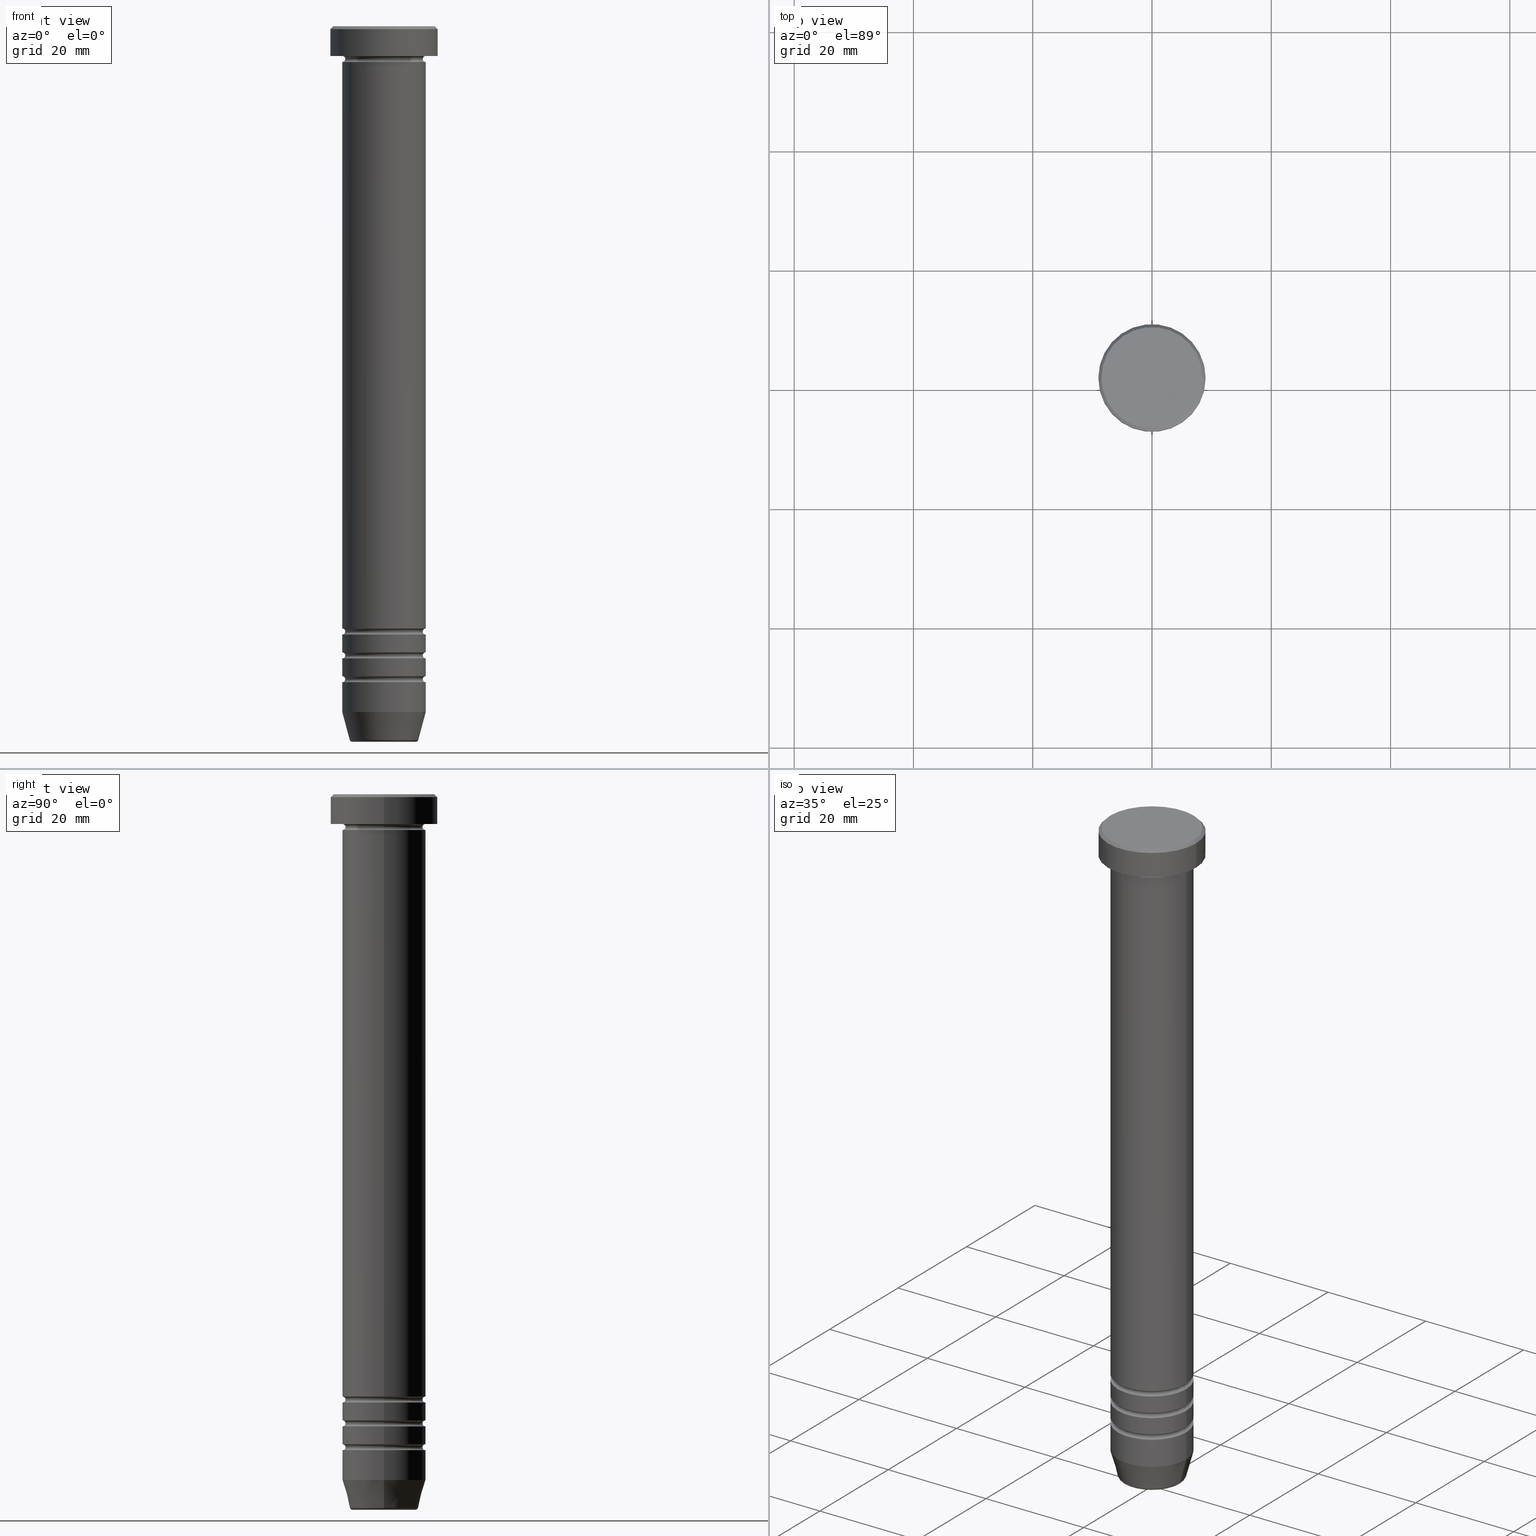
[diagram: canonical four-view strip — front | top / right | iso, engineering-drawing reading convention]
A machine part, canonical four-view strip (front | top / right | iso — engineering-drawing reading convention). The complete STEP part file that produces these views, byte-faithful:
ISO-10303-21;
HEADER;
FILE_DESCRIPTION (( 'STEP AP203' ),
    '1' );
FILE_NAME ('8206.STEP',
    '2024-01-02T23:06:11',
    ( '' ),
    ( '' ),
    'SwSTEP 2.0',
    'SolidWorks 2019',
    '' );
FILE_SCHEMA (( 'CONFIG_CONTROL_DESIGN' ));
ENDSEC;

DATA;
#1 = CARTESIAN_POINT ( 'NONE',  ( 7.000000000000000888, 0.000000000000000000, -5.500000000000001776 ) ) ;
#2 = ORIENTED_EDGE ( 'NONE', *, *, #791, .F. ) ;
#3 = ORIENTED_EDGE ( 'NONE', *, *, #332, .F. ) ;
#4 = AXIS2_PLACEMENT_3D ( 'NONE', #101, #88, #427 ) ;
#5 = CONICAL_SURFACE ( 'NONE', #729, 5.660254037844381081, 0.2617993877991502405 ) ;
#6 = AXIS2_PLACEMENT_3D ( 'NONE', #709, #135, #373 ) ;
#7 = CIRCLE ( 'NONE', #608, 7.000000000000000000 ) ;
#8 = ADVANCED_FACE ( 'NONE', ( #99 ), #589, .T. ) ;
#9 = DIRECTION ( 'NONE',  ( -1.000000000000000000, 0.000000000000000000, 0.000000000000000000 ) ) ;
#10 = VERTEX_POINT ( 'NONE', #514 ) ;
#11 = ORIENTED_EDGE ( 'NONE', *, *, #125, .T. ) ;
#12 = ADVANCED_FACE ( 'NONE', ( #442 ), #353, .F. ) ;
#13 = CARTESIAN_POINT ( 'NONE',  ( 0.000000000000000000, 0.000000000000000000, -105.4999999999999858 ) ) ;
#14 = FACE_OUTER_BOUND ( 'NONE', #318, .T. ) ;
#15 = CYLINDRICAL_SURFACE ( 'NONE', #895, 9.000000000000000000 ) ;
#16 = ORIENTED_EDGE ( 'NONE', *, *, #64, .T. ) ;
#17 = ORIENTED_EDGE ( 'NONE', *, *, #680, .F. ) ;
#18 = DIRECTION ( 'NONE',  ( -0.000000000000000000, -0.000000000000000000, 1.000000000000000000 ) ) ;
#19 = DIRECTION ( 'NONE',  ( 0.000000000000000000, 0.000000000000000000, -1.000000000000000000 ) ) ;
#20 = CYLINDRICAL_SURFACE ( 'NONE', #357, 7.000000000000000000 ) ;
#21 = CARTESIAN_POINT ( 'NONE',  ( 0.000000000000000000, -2.602085213965210642E-15, -27.00000000000000000 ) ) ;
#22 = DIRECTION ( 'NONE',  ( 0.000000000000000000, -1.000000000000000000, 0.000000000000000000 ) ) ;
#23 = CIRCLE ( 'NONE', #892, 0.5000000000000004441 ) ;
#24 = AXIS2_PLACEMENT_3D ( 'NONE', #170, #538, #732 ) ;
#25 = AXIS2_PLACEMENT_3D ( 'NONE', #838, #102, #1012 ) ;
#26 = LOCAL_TIME ( 0, 6, 11.00000000000000000, #618 ) ;
#27 = CIRCLE ( 'NONE', #142, 6.999999999999992895 ) ;
#28 = DIRECTION ( 'NONE',  ( -1.000000000000000000, 1.224646799147353454E-16, 0.000000000000000000 ) ) ;
#29 = DIRECTION ( 'NONE',  ( 0.000000000000000000, 0.000000000000000000, -1.000000000000000000 ) ) ;
#30 = DIRECTION ( 'NONE',  ( -1.000000000000000000, 0.000000000000000000, -0.000000000000000000 ) ) ;
#31 = EDGE_CURVE ( 'NONE', #959, #1050, #166, .T. ) ;
#32 = EDGE_CURVE ( 'NONE', #176, #825, #430, .T. ) ;
#33 = DIRECTION ( 'NONE',  ( 0.000000000000000000, 0.000000000000000000, -1.000000000000000000 ) ) ;
#34 = DIRECTION ( 'NONE',  ( 1.000000000000000000, 0.000000000000000000, 0.000000000000000000 ) ) ;
#35 = CARTESIAN_POINT ( 'NONE',  ( 9.000000000000000000, 0.000000000000000000, -5.000000000000000000 ) ) ;
#36 = COORDINATED_UNIVERSAL_TIME_OFFSET ( 1, 0, .AHEAD. ) ;
#37 = DIRECTION ( 'NONE',  ( 1.000000000000000000, 0.000000000000000000, 0.000000000000000000 ) ) ;
#38 = DIRECTION ( 'NONE',  ( -0.000000000000000000, -0.000000000000000000, 1.000000000000000000 ) ) ;
#39 = ORIENTED_EDGE ( 'NONE', *, *, #44, .F. ) ;
#40 = AXIS2_PLACEMENT_3D ( 'NONE', #301, #131, #55 ) ;
#41 = AXIS2_PLACEMENT_3D ( 'NONE', #788, #224, #975 ) ;
#42 = APPROVAL_DATE_TIME ( #293, #480 ) ;
#43 = DIRECTION ( 'NONE',  ( 0.000000000000000000, 0.000000000000000000, -1.000000000000000000 ) ) ;
#44 = EDGE_CURVE ( 'NONE', #826, #882, #951, .T. ) ;
#45 = CIRCLE ( 'NONE', #573, 0.5000000000000004441 ) ;
#46 = CC_DESIGN_PERSON_AND_ORGANIZATION_ASSIGNMENT ( #54, #123, ( #712 ) ) ;
#47 = CARTESIAN_POINT ( 'NONE',  ( 6.999999999999996447, 0.000000000000000000, 0.000000000000000000 ) ) ;
#48 = VERTEX_POINT ( 'NONE', #909 ) ;
#49 = EDGE_CURVE ( 'NONE', #1050, #942, #346, .T. ) ;
#50 = PERSON_AND_ORGANIZATION ( #998, #744 ) ;
#51 = DIRECTION ( 'NONE',  ( 1.000000000000000000, 0.000000000000000000, 0.000000000000000000 ) ) ;
#52 = CYLINDRICAL_SURFACE ( 'NONE', #145, 6.999999999999996447 ) ;
#53 = ORIENTED_EDGE ( 'NONE', *, *, #716, .T. ) ;
#54 = PERSON_AND_ORGANIZATION ( #998, #744 ) ;
#55 = DIRECTION ( 'NONE',  ( 1.000000000000000000, 0.000000000000000000, 0.000000000000000000 ) ) ;
#56 = DIRECTION ( 'NONE',  ( -0.000000000000000000, -0.000000000000000000, 1.000000000000000000 ) ) ;
#57 = EDGE_LOOP ( 'NONE', ( #175, #140, #623, #858 ) ) ;
#58 = AXIS2_PLACEMENT_3D ( 'NONE', #409, #324, #158 ) ;
#59 = LINE ( 'NONE', #691, #777 ) ;
#60 = CONICAL_SURFACE ( 'NONE', #624, 8.500000000000003553, 0.7853981633974482790 ) ;
#61 = TOROIDAL_SURFACE ( 'NONE', #930, 6.999999999999995559, 0.5000000000000000000 ) ;
#62 = ORIENTED_EDGE ( 'NONE', *, *, #915, .F. ) ;
#63 = FACE_OUTER_BOUND ( 'NONE', #582, .T. ) ;
#64 = EDGE_CURVE ( 'NONE', #549, #726, #439, .T. ) ;
#65 = CYLINDRICAL_SURFACE ( 'NONE', #58, 7.000000000000000000 ) ;
#66 = ORIENTED_EDGE ( 'NONE', *, *, #223, .F. ) ;
#67 = CARTESIAN_POINT ( 'NONE',  ( 0.000000000000000000, 0.000000000000000000, -5.500000000000001776 ) ) ;
#68 = ORIENTED_EDGE ( 'NONE', *, *, #899, .F. ) ;
#69 = VERTEX_POINT ( 'NONE', #853 ) ;
#70 = DIRECTION ( 'NONE',  ( 1.000000000000000000, 0.000000000000000000, 0.000000000000000000 ) ) ;
#71 = CIRCLE ( 'NONE', #285, 7.000000000000000000 ) ;
#72 = ADVANCED_FACE ( 'NONE', ( #850 ), #61, .F. ) ;
#73 = FACE_OUTER_BOUND ( 'NONE', #739, .T. ) ;
#74 = AXIS2_PLACEMENT_3D ( 'NONE', #1052, #56, #462 ) ;
#75 = VERTEX_POINT ( 'NONE', #185 ) ;
#76 = ORIENTED_EDGE ( 'NONE', *, *, #665, .T. ) ;
#77 = APPROVAL_PERSON_ORGANIZATION ( #173, #836, #985 ) ;
#78 = AXIS2_PLACEMENT_3D ( 'NONE', #13, #920, #671 ) ;
#79 = EDGE_CURVE ( 'NONE', #642, #374, #872, .T. ) ;
#80 = FACE_OUTER_BOUND ( 'NONE', #532, .T. ) ;
#81 = CARTESIAN_POINT ( 'NONE',  ( 6.999999999999992895, 0.000000000000000000, -108.9999999999999858 ) ) ;
#82 = ORIENTED_EDGE ( 'NONE', *, *, #946, .F. ) ;
#83 = DIRECTION ( 'NONE',  ( 1.000000000000000000, 0.000000000000000000, 0.000000000000000000 ) ) ;
#84 = DIRECTION ( 'NONE',  ( 1.000000000000000000, 0.000000000000000000, 0.000000000000000000 ) ) ;
#85 = ORIENTED_EDGE ( 'NONE', *, *, #79, .T. ) ;
#86 = ADVANCED_FACE ( 'NONE', ( #664 ), #996, .T. ) ;
#87 = CARTESIAN_POINT ( 'NONE',  ( 0.000000000000000000, 0.000000000000000000, -120.0000000000000000 ) ) ;
#88 = DIRECTION ( 'NONE',  ( -0.000000000000000000, -0.000000000000000000, 1.000000000000000000 ) ) ;
#89 = VERTEX_POINT ( 'NONE', #35 ) ;
#90 = EDGE_LOOP ( 'NONE', ( #721, #833, #720, #188 ) ) ;
#91 = AXIS2_PLACEMENT_3D ( 'NONE', #787, #778, #784 ) ;
#92 = AXIS2_PLACEMENT_3D ( 'NONE', #817, #641, #248 ) ;
#93 = LOCAL_TIME ( 0, 6, 11.00000000000000000, #772 ) ;
#94 = AXIS2_PLACEMENT_3D ( 'NONE', #521, #364, #762 ) ;
#95 = DIRECTION ( 'NONE',  ( -0.000000000000000000, -0.000000000000000000, 1.000000000000000000 ) ) ;
#96 = DIRECTION ( 'NONE',  ( 0.000000000000000000, 0.000000000000000000, -1.000000000000000000 ) ) ;
#97 = ORIENTED_EDGE ( 'NONE', *, *, #194, .F. ) ;
#98 = EDGE_CURVE ( 'NONE', #264, #374, #169, .T. ) ;
#99 = FACE_OUTER_BOUND ( 'NONE', #509, .T. ) ;
#100 = DIRECTION ( 'NONE',  ( 1.000000000000000000, 0.000000000000000000, 0.000000000000000000 ) ) ;
#101 = CARTESIAN_POINT ( 'NONE',  ( 0.000000000000000000, 0.000000000000000000, -109.9999999999999858 ) ) ;
#102 = DIRECTION ( 'NONE',  ( 0.000000000000000000, -0.000000000000000000, 1.000000000000000000 ) ) ;
#103 = DIRECTION ( 'NONE',  ( -1.000000000000000000, -1.224646799147351482E-16, 0.000000000000000000 ) ) ;
#104 = DIRECTION ( 'NONE',  ( 1.000000000000000000, 0.000000000000000000, 0.000000000000000000 ) ) ;
#105 = ORIENTED_EDGE ( 'NONE', *, *, #991, .T. ) ;
#106 = CARTESIAN_POINT ( 'NONE',  ( 7.000000000000000000, 0.000000000000000000, -102.0000000000000000 ) ) ;
#107 = CARTESIAN_POINT ( 'NONE',  ( 0.000000000000000000, 0.000000000000000000, -5.500000000000001776 ) ) ;
#108 = ADVANCED_FACE ( 'NONE', ( #267 ), #556, .F. ) ;
#109 = CARTESIAN_POINT ( 'NONE',  ( 0.000000000000000000, 0.000000000000000000, -5.500000000000001776 ) ) ;
#110 = CARTESIAN_POINT ( 'NONE',  ( 0.000000000000000000, 0.000000000000000000, 0.000000000000000000 ) ) ;
#111 = VECTOR ( 'NONE', #574, 1000.000000000000000 ) ;
#112 = CIRCLE ( 'NONE', #232, 6.499999999999995559 ) ;
#113 = ADVANCED_FACE ( 'NONE', ( #990 ), #261, .T. ) ;
#114 = AXIS2_PLACEMENT_3D ( 'NONE', #1002, #432, #358 ) ;
#115 = PERSON_AND_ORGANIZATION ( #998, #744 ) ;
#116 = DIRECTION ( 'NONE',  ( 1.000000000000000000, 0.000000000000000000, 0.000000000000000000 ) ) ;
#117 = DIRECTION ( 'NONE',  ( -0.000000000000000000, -0.000000000000000000, 1.000000000000000000 ) ) ;
#118 = CARTESIAN_POINT ( 'NONE',  ( 5.276590543854901227, 0.000000000000000000, -119.5000000000000000 ) ) ;
#119 = DIRECTION ( 'NONE',  ( -0.000000000000000000, -0.000000000000000000, 1.000000000000000000 ) ) ;
#120 = CARTESIAN_POINT ( 'NONE',  ( 6.999999999999995559, 8.572527594031467273E-16, -105.4999999999999858 ) ) ;
#121 = EDGE_LOOP ( 'NONE', ( #723, #617, #304, #508 ) ) ;
#122 = EDGE_CURVE ( 'NONE', #369, #397, #511, .T. ) ;
#123 = PERSON_AND_ORGANIZATION_ROLE ( 'classification_officer' ) ;
#124 = FACE_OUTER_BOUND ( 'NONE', #488, .T. ) ;
#125 = EDGE_CURVE ( 'NONE', #397, #663, #234, .T. ) ;
#126 = DIRECTION ( 'NONE',  ( -0.000000000000000000, -0.000000000000000000, 1.000000000000000000 ) ) ;
#127 = ORIENTED_EDGE ( 'NONE', *, *, #425, .T. ) ;
#128 = TOROIDAL_SURFACE ( 'NONE', #398, 6.999999999999995559, 0.5000000000000000000 ) ;
#129 = VECTOR ( 'NONE', #869, 1000.000000000000000 ) ;
#130 = AXIS2_PLACEMENT_3D ( 'NONE', #905, #19, #349 ) ;
#131 = DIRECTION ( 'NONE',  ( -0.000000000000000000, -0.000000000000000000, 1.000000000000000000 ) ) ;
#132 = DIRECTION ( 'NONE',  ( 0.000000000000000000, -1.000000000000000000, 0.000000000000000000 ) ) ;
#133 = ORIENTED_EDGE ( 'NONE', *, *, #946, .T. ) ;
#134 = CARTESIAN_POINT ( 'NONE',  ( 0.000000000000000000, 0.000000000000000000, -5.000000000000000000 ) ) ;
#135 = DIRECTION ( 'NONE',  ( 0.000000000000000000, 0.000000000000000000, -1.000000000000000000 ) ) ;
#136 = VERTEX_POINT ( 'NONE', #756 ) ;
#137 = PRODUCT ( '8206', '8206', '', ( #1061 ) ) ;
#138 = DIRECTION ( 'NONE',  ( -0.2588190451025214611, 3.169619151431774186E-17, 0.9659258262890679791 ) ) ;
#139 = EDGE_CURVE ( 'NONE', #942, #244, #830, .T. ) ;
#140 = ORIENTED_EDGE ( 'NONE', *, *, #298, .T. ) ;
#141 = ADVANCED_FACE ( 'NONE', ( #1004 ), #300, .F. ) ;
#142 = AXIS2_PLACEMENT_3D ( 'NONE', #362, #337, #116 ) ;
#143 = CIRCLE ( 'NONE', #216, 0.5000000000000004441 ) ;
#144 = DIRECTION ( 'NONE',  ( 1.000000000000000000, 0.000000000000000000, 0.000000000000000000 ) ) ;
#145 = AXIS2_PLACEMENT_3D ( 'NONE', #809, #377, #70 ) ;
#146 = TOROIDAL_SURFACE ( 'NONE', #815, 5.276590543854901227, 0.5000000000000000000 ) ;
#147 = CIRCLE ( 'NONE', #745, 6.999999999999998224 ) ;
#148 = ORIENTED_EDGE ( 'NONE', *, *, #407, .F. ) ;
#149 = ORIENTED_EDGE ( 'NONE', *, *, #348, .F. ) ;
#150 = CARTESIAN_POINT ( 'NONE',  ( 0.000000000000000000, 0.000000000000000000, -101.5000000000000000 ) ) ;
#151 = DIRECTION ( 'NONE',  ( -0.000000000000000000, -0.000000000000000000, 1.000000000000000000 ) ) ;
#152 = ORIENTED_EDGE ( 'NONE', *, *, #237, .T. ) ;
#153 = ORIENTED_EDGE ( 'NONE', *, *, #226, .T. ) ;
#154 = ORIENTED_EDGE ( 'NONE', *, *, #789, .F. ) ;
#155 = EDGE_CURVE ( 'NONE', #397, #310, #848, .T. ) ;
#156 = DIRECTION ( 'NONE',  ( -1.000000000000000000, -1.224646799147351482E-16, 0.000000000000000000 ) ) ;
#157 = CARTESIAN_POINT ( 'NONE',  ( 6.999999999999995559, 0.000000000000000000, -101.5000000000000000 ) ) ;
#158 = DIRECTION ( 'NONE',  ( 1.000000000000000000, 0.000000000000000000, 0.000000000000000000 ) ) ;
#159 = VERTEX_POINT ( 'NONE', #769 ) ;
#160 = ADVANCED_FACE ( 'NONE', ( #746 ), #782, .F. ) ;
#161 = EDGE_LOOP ( 'NONE', ( #172, #759, #800, #482 ) ) ;
#162 = LINE ( 'NONE', #484, #605 ) ;
#163 = CIRCLE ( 'NONE', #498, 6.999999999999992895 ) ;
#164 = LINE ( 'NONE', #936, #795 ) ;
#165 = CIRCLE ( 'NONE', #765, 6.500000000000000888 ) ;
#166 = CIRCLE ( 'NONE', #697, 8.500000000000003553 ) ;
#167 = ORIENTED_EDGE ( 'NONE', *, *, #791, .T. ) ;
#168 = LOCAL_TIME ( 0, 6, 11.00000000000000000, #257 ) ;
#169 = CIRCLE ( 'NONE', #94, 0.5000000000000004441 ) ;
#170 = CARTESIAN_POINT ( 'NONE',  ( 0.000000000000000000, 0.000000000000000000, -109.4999999999999858 ) ) ;
#171 = DIRECTION ( 'NONE',  ( -0.7071067811865474617, 0.000000000000000000, -0.7071067811865474617 ) ) ;
#172 = ORIENTED_EDGE ( 'NONE', *, *, #443, .F. ) ;
#173 = PERSON_AND_ORGANIZATION ( #998, #744 ) ;
#174 = DIRECTION ( 'NONE',  ( -1.000000000000000000, 0.000000000000000000, -0.000000000000000000 ) ) ;
#175 = ORIENTED_EDGE ( 'NONE', *, *, #32, .F. ) ;
#176 = VERTEX_POINT ( 'NONE', #342 ) ;
#177 = ADVANCED_FACE ( 'NONE', ( #507, #986 ), #587, .T. ) ;
#178 =( NAMED_UNIT ( * ) PLANE_ANGLE_UNIT ( ) SI_UNIT ( $, .RADIAN. ) );
#179 = CARTESIAN_POINT ( 'NONE',  ( 0.000000000000000000, 0.000000000000000000, -105.4999999999999858 ) ) ;
#180 = ORIENTED_EDGE ( 'NONE', *, *, #1056, .F. ) ;
#181 = ORIENTED_EDGE ( 'NONE', *, *, #974, .F. ) ;
#182 = AXIS2_PLACEMENT_3D ( 'NONE', #1017, #395, #156 ) ;
#183 = CIRCLE ( 'NONE', #813, 7.000000000000000000 ) ;
#184 = APPLICATION_CONTEXT ( 'configuration controlled 3d designs of mechanical parts and assemblies' ) ;
#185 = CARTESIAN_POINT ( 'NONE',  ( -6.499999999999995559, 8.266365894244627431E-16, -101.5000000000000000 ) ) ;
#186 = AXIS2_PLACEMENT_3D ( 'NONE', #581, #96, #835 ) ;
#187 = CARTESIAN_POINT ( 'NONE',  ( -6.500000000000000888, 8.266365894244635319E-16, -5.500000000000001776 ) ) ;
#188 = ORIENTED_EDGE ( 'NONE', *, *, #524, .F. ) ;
#189 = VERTEX_POINT ( 'NONE', #187 ) ;
#190 = CARTESIAN_POINT ( 'NONE',  ( 0.000000000000000000, 0.000000000000000000, -102.0000000000000000 ) ) ;
#191 = DIRECTION ( 'NONE',  ( 0.000000000000000000, 0.000000000000000000, -1.000000000000000000 ) ) ;
#192 = ADVANCED_FACE ( 'NONE', ( #683 ), #20, .T. ) ;
#193 = FACE_OUTER_BOUND ( 'NONE', #577, .T. ) ;
#194 = EDGE_CURVE ( 'NONE', #394, #465, #758, .T. ) ;
#195 = DIRECTION ( 'NONE',  ( -0.000000000000000000, -0.000000000000000000, 1.000000000000000000 ) ) ;
#196 = FACE_OUTER_BOUND ( 'NONE', #567, .T. ) ;
#197 = MANIFOLD_SOLID_BREP ( 'Zaoblit5', #814 ) ;
#198 = DIRECTION ( 'NONE',  ( -0.000000000000000000, -0.000000000000000000, 1.000000000000000000 ) ) ;
#199 = CARTESIAN_POINT ( 'NONE',  ( 0.000000000000000000, 0.000000000000000000, 0.000000000000000000 ) ) ;
#200 = TOROIDAL_SURFACE ( 'NONE', #40, 7.000000000000000888, 0.5000000000000000000 ) ;
#201 = AXIS2_PLACEMENT_3D ( 'NONE', #1020, #678, #30 ) ;
#202 = AXIS2_PLACEMENT_3D ( 'NONE', #940, #615, #610 ) ;
#203 = CALENDAR_DATE ( 2024, 3, 1 ) ;
#204 = CARTESIAN_POINT ( 'NONE',  ( 0.000000000000000000, 0.000000000000000000, -104.9999999999999858 ) ) ;
#205 = DIRECTION ( 'NONE',  ( -0.000000000000000000, -0.000000000000000000, 1.000000000000000000 ) ) ;
#206 = EDGE_CURVE ( 'NONE', #908, #10, #27, .T. ) ;
#207 = CARTESIAN_POINT ( 'NONE',  ( -7.000000000000000000, 8.572527594031473190E-16, 0.000000000000000000 ) ) ;
#208 = ADVANCED_FACE ( 'NONE', ( #193 ), #15, .T. ) ;
#209 = DATE_TIME_ROLE ( 'creation_date' ) ;
#210 = CARTESIAN_POINT ( 'NONE',  ( 7.000000000000000000, 0.000000000000000000, 0.000000000000000000 ) ) ;
#211 = DIRECTION ( 'NONE',  ( 1.000000000000000000, 0.000000000000000000, 0.000000000000000000 ) ) ;
#212 = ORIENTED_EDGE ( 'NONE', *, *, #915, .T. ) ;
#213 = CARTESIAN_POINT ( 'NONE',  ( -7.000000000000000000, 8.572527594031473190E-16, -114.9999999999999858 ) ) ;
#214 = CYLINDRICAL_SURFACE ( 'NONE', #41, 7.000000000000000000 ) ;
#215 = ORIENTED_EDGE ( 'NONE', *, *, #302, .T. ) ;
#216 = AXIS2_PLACEMENT_3D ( 'NONE', #718, #307, #884 ) ;
#217 = CIRCLE ( 'NONE', #912, 0.5000000000000004441 ) ;
#218 = VECTOR ( 'NONE', #841, 1000.000000000000114 ) ;
#219 = LINE ( 'NONE', #210, #637 ) ;
#220 = CARTESIAN_POINT ( 'NONE',  ( -6.999999999999995559, 0.000000000000000000, -105.4999999999999858 ) ) ;
#221 = VERTEX_POINT ( 'NONE', #824 ) ;
#222 = DIRECTION ( 'NONE',  ( -1.000000000000000000, 0.000000000000000000, 0.000000000000000000 ) ) ;
#223 = EDGE_CURVE ( 'NONE', #663, #136, #45, .T. ) ;
#224 = DIRECTION ( 'NONE',  ( -0.000000000000000000, -0.000000000000000000, 1.000000000000000000 ) ) ;
#225 = ORIENTED_EDGE ( 'NONE', *, *, #408, .T. ) ;
#226 = EDGE_CURVE ( 'NONE', #478, #75, #335, .T. ) ;
#227 = DIRECTION ( 'NONE',  ( -0.000000000000000000, -0.000000000000000000, 1.000000000000000000 ) ) ;
#228 = ORIENTED_EDGE ( 'NONE', *, *, #298, .F. ) ;
#229 = ORIENTED_EDGE ( 'NONE', *, *, #390, .T. ) ;
#230 = CIRCLE ( 'NONE', #674, 8.500000000000003553 ) ;
#231 = FACE_OUTER_BOUND ( 'NONE', #811, .T. ) ;
#232 = AXIS2_PLACEMENT_3D ( 'NONE', #955, #865, #646 ) ;
#233 = CARTESIAN_POINT ( 'NONE',  ( -8.500000000000003553, 0.000000000000000000, 0.000000000000000000 ) ) ;
#234 = CIRCLE ( 'NONE', #317, 7.000000000000000000 ) ;
#235 = EDGE_LOOP ( 'NONE', ( #874, #338 ) ) ;
#236 = ORIENTED_EDGE ( 'NONE', *, *, #500, .F. ) ;
#237 = EDGE_CURVE ( 'NONE', #663, #397, #657, .T. ) ;
#238 = DIRECTION ( 'NONE',  ( -0.000000000000000000, -0.000000000000000000, 1.000000000000000000 ) ) ;
#239 = EDGE_CURVE ( 'NONE', #244, #942, #602, .T. ) ;
#240 = FACE_OUTER_BOUND ( 'NONE', #254, .T. ) ;
#241 = ORIENTED_EDGE ( 'NONE', *, *, #1025, .T. ) ;
#242 = FACE_OUTER_BOUND ( 'NONE', #57, .T. ) ;
#243 = CARTESIAN_POINT ( 'NONE',  ( 0.000000000000000000, 0.000000000000000000, -109.4999999999999858 ) ) ;
#244 = VERTEX_POINT ( 'NONE', #753 ) ;
#245 = ORIENTED_EDGE ( 'NONE', *, *, #1057, .T. ) ;
#246 = FACE_OUTER_BOUND ( 'NONE', #503, .T. ) ;
#247 = CIRCLE ( 'NONE', #552, 0.5000000000000004441 ) ;
#248 = DIRECTION ( 'NONE',  ( 1.000000000000000000, 0.000000000000000000, 0.000000000000000000 ) ) ;
#249 = CIRCLE ( 'NONE', #386, 0.5000000000000004441 ) ;
#250 = ORIENTED_EDGE ( 'NONE', *, *, #633, .T. ) ;
#251 = AXIS2_PLACEMENT_3D ( 'NONE', #107, #667, #9 ) ;
#252 = DIRECTION ( 'NONE',  ( 1.224646799147353207E-16, 1.000000000000000000, 0.000000000000000000 ) ) ;
#253 = LINE ( 'NONE', #392, #859 ) ;
#254 = EDGE_LOOP ( 'NONE', ( #904, #245, #474, #1021 ) ) ;
#255 = EDGE_LOOP ( 'NONE', ( #918, #790, #569, #1032 ) ) ;
#256 = ADVANCED_FACE ( 'NONE', ( #272 ), #640, .F. ) ;
#257 = COORDINATED_UNIVERSAL_TIME_OFFSET ( 1, 0, .AHEAD. ) ;
#258 = DIRECTION ( 'NONE',  ( -1.000000000000000000, -1.224646799147351482E-16, 0.000000000000000000 ) ) ;
#259 = ORIENTED_EDGE ( 'NONE', *, *, #880, .F. ) ;
#260 = VERTEX_POINT ( 'NONE', #687 ) ;
#261 = CYLINDRICAL_SURFACE ( 'NONE', #411, 6.999999999999996447 ) ;
#262 = DIRECTION ( 'NONE',  ( -0.000000000000000000, -0.000000000000000000, 1.000000000000000000 ) ) ;
#263 = VERTEX_POINT ( 'NONE', #1009 ) ;
#264 = VERTEX_POINT ( 'NONE', #593 ) ;
#265 = AXIS2_PLACEMENT_3D ( 'NONE', #283, #359, #767 ) ;
#266 = CARTESIAN_POINT ( 'NONE',  ( 0.000000000000000000, 0.000000000000000000, -5.000000000000000888 ) ) ;
#267 = FACE_OUTER_BOUND ( 'NONE', #648, .T. ) ;
#268 = ADVANCED_FACE ( 'NONE', ( #277 ), #512, .F. ) ;
#269 = PRODUCT_RELATED_PRODUCT_CATEGORY ( 'detail', '', ( #137 ) ) ;
#270 = CARTESIAN_POINT ( 'NONE',  ( 0.000000000000000000, 0.000000000000000000, -105.9999999999999858 ) ) ;
#271 = EDGE_CURVE ( 'NONE', #10, #908, #740, .T. ) ;
#272 = FACE_OUTER_BOUND ( 'NONE', #255, .T. ) ;
#273 = FACE_OUTER_BOUND ( 'NONE', #563, .T. ) ;
#274 = DIRECTION ( 'NONE',  ( 0.000000000000000000, 0.000000000000000000, -1.000000000000000000 ) ) ;
#275 = ADVANCED_BREP_SHAPE_REPRESENTATION ( '8206', ( #900, #197, #639 ), #676 ) ;
#276 = CARTESIAN_POINT ( 'NONE',  ( -6.999999999999995559, 8.572527594031467273E-16, -105.4999999999999858 ) ) ;
#277 = FACE_OUTER_BOUND ( 'NONE', #547, .T. ) ;
#278 = DIRECTION ( 'NONE',  ( 1.000000000000000000, 0.000000000000000000, 0.000000000000000000 ) ) ;
#279 = DIRECTION ( 'NONE',  ( 0.000000000000000000, 0.000000000000000000, -1.000000000000000000 ) ) ;
#280 = DATE_AND_TIME ( #580, #168 ) ;
#281 = DIRECTION ( 'NONE',  ( 1.000000000000000000, 0.000000000000000000, 0.000000000000000000 ) ) ;
#282 = AXIS2_PLACEMENT_3D ( 'NONE', #118, #22, #191 ) ;
#283 = CARTESIAN_POINT ( 'NONE',  ( 0.000000000000000000, 0.000000000000000000, -108.9999999999999858 ) ) ;
#284 = DIRECTION ( 'NONE',  ( -1.000000000000000000, 0.000000000000000000, 0.000000000000000000 ) ) ;
#285 = AXIS2_PLACEMENT_3D ( 'NONE', #316, #972, #1059 ) ;
#286 = CIRCLE ( 'NONE', #1019, 9.000000000000000000 ) ;
#287 = DIRECTION ( 'NONE',  ( -1.000000000000000000, 0.000000000000000000, 0.000000000000000000 ) ) ;
#288 = CARTESIAN_POINT ( 'NONE',  ( 6.999999999999995559, 0.000000000000000000, -109.4999999999999858 ) ) ;
#289 = ORIENTED_EDGE ( 'NONE', *, *, #366, .T. ) ;
#290 = ADVANCED_FACE ( 'NONE', ( #124 ), #470, .T. ) ;
#291 = CARTESIAN_POINT ( 'NONE',  ( 0.000000000000000000, 0.000000000000000000, 0.000000000000000000 ) ) ;
#292 = ORIENTED_EDGE ( 'NONE', *, *, #748, .F. ) ;
#293 = DATE_AND_TIME ( #1015, #696 ) ;
#294 = DIRECTION ( 'NONE',  ( 0.000000000000000000, 0.000000000000000000, -1.000000000000000000 ) ) ;
#295 = FACE_OUTER_BOUND ( 'NONE', #559, .T. ) ;
#296 = ORIENTED_EDGE ( 'NONE', *, *, #489, .F. ) ;
#297 = AXIS2_PLACEMENT_3D ( 'NONE', #472, #881, #486 ) ;
#298 = EDGE_CURVE ( 'NONE', #176, #69, #797, .T. ) ;
#299 = AXIS2_PLACEMENT_3D ( 'NONE', #21, #520, #354 ) ;
#300 = TOROIDAL_SURFACE ( 'NONE', #504, 6.999999999999995559, 0.5000000000000000000 ) ;
#301 = CARTESIAN_POINT ( 'NONE',  ( 0.000000000000000000, 0.000000000000000000, -5.500000000000001776 ) ) ;
#302 = EDGE_CURVE ( 'NONE', #781, #636, #7, .T. ) ;
#303 = CYLINDRICAL_SURFACE ( 'NONE', #586, 7.000000000000000000 ) ;
#304 = ORIENTED_EDGE ( 'NONE', *, *, #524, .T. ) ;
#305 = DIRECTION ( 'NONE',  ( 1.000000000000000000, 0.000000000000000000, 0.000000000000000000 ) ) ;
#306 = ORIENTED_EDGE ( 'NONE', *, *, #714, .T. ) ;
#307 = DIRECTION ( 'NONE',  ( 1.224646799147353207E-16, 1.000000000000000000, 0.000000000000000000 ) ) ;
#308 = EDGE_CURVE ( 'NONE', #264, #394, #147, .T. ) ;
#309 = CARTESIAN_POINT ( 'NONE',  ( -7.000000000000000000, 8.572527594031472204E-16, -27.00000000000000000 ) ) ;
#310 = VERTEX_POINT ( 'NONE', #703 ) ;
#311 = CC_DESIGN_DATE_AND_TIME_ASSIGNMENT ( #361, #209, ( #1028 ) ) ;
#312 = EDGE_CURVE ( 'NONE', #263, #89, #286, .T. ) ;
#313 = TOROIDAL_SURFACE ( 'NONE', #708, 6.999999999999995559, 0.5000000000000000000 ) ;
#314 = DIRECTION ( 'NONE',  ( -0.000000000000000000, -0.000000000000000000, 1.000000000000000000 ) ) ;
#315 = CIRCLE ( 'NONE', #356, 6.499999999999995559 ) ;
#316 = CARTESIAN_POINT ( 'NONE',  ( 0.000000000000000000, 0.000000000000000000, -102.0000000000000000 ) ) ;
#317 = AXIS2_PLACEMENT_3D ( 'NONE', #600, #437, #505 ) ;
#318 = EDGE_LOOP ( 'NONE', ( #550, #416, #379, #85 ) ) ;
#319 = CYLINDRICAL_SURFACE ( 'NONE', #964, 6.999999999999996447 ) ;
#320 = DIRECTION ( 'NONE',  ( 0.000000000000000000, -1.000000000000000000, 0.000000000000000000 ) ) ;
#321 = ORIENTED_EDGE ( 'NONE', *, *, #680, .T. ) ;
#322 = ORIENTED_EDGE ( 'NONE', *, *, #332, .T. ) ;
#323 = FACE_OUTER_BOUND ( 'NONE', #90, .T. ) ;
#324 = DIRECTION ( 'NONE',  ( -0.000000000000000000, -0.000000000000000000, 1.000000000000000000 ) ) ;
#325 = ORIENTED_EDGE ( 'NONE', *, *, #802, .T. ) ;
#326 = EDGE_CURVE ( 'NONE', #48, #369, #954, .T. ) ;
#327 = DIRECTION ( 'NONE',  ( 0.000000000000000000, 0.000000000000000000, -1.000000000000000000 ) ) ;
#328 = AXIS2_PLACEMENT_3D ( 'NONE', #902, #635, #329 ) ;
#329 = DIRECTION ( 'NONE',  ( 1.000000000000000000, 0.000000000000000000, 0.000000000000000000 ) ) ;
#330 = CIRCLE ( 'NONE', #999, 0.5000000000000004441 ) ;
#331 = EDGE_LOOP ( 'NONE', ( #898, #228 ) ) ;
#332 = EDGE_CURVE ( 'NONE', #726, #48, #418, .T. ) ;
#333 = ORIENTED_EDGE ( 'NONE', *, *, #32, .T. ) ;
#334 = APPROVAL_PERSON_ORGANIZATION ( #1029, #480, #776 ) ;
#335 = CIRCLE ( 'NONE', #186, 6.499999999999995559 ) ;
#336 =( LENGTH_UNIT ( ) NAMED_UNIT ( * ) SI_UNIT ( .MILLI., .METRE. ) );
#337 = DIRECTION ( 'NONE',  ( -0.000000000000000000, -0.000000000000000000, 1.000000000000000000 ) ) ;
#338 = ORIENTED_EDGE ( 'NONE', *, *, #312, .F. ) ;
#339 = ORIENTED_EDGE ( 'NONE', *, *, #206, .F. ) ;
#340 = DIRECTION ( 'NONE',  ( -0.000000000000000000, -0.000000000000000000, 1.000000000000000000 ) ) ;
#341 = DIRECTION ( 'NONE',  ( 0.2588190451025214611, 0.000000000000000000, 0.9659258262890679791 ) ) ;
#342 = CARTESIAN_POINT ( 'NONE',  ( -7.000000000000000000, 8.572527594031473190E-16, -27.00000000000000000 ) ) ;
#343 = EDGE_LOOP ( 'NONE', ( #180, #734, #3, #754 ) ) ;
#344 = ORIENTED_EDGE ( 'NONE', *, *, #899, .T. ) ;
#345 = EDGE_CURVE ( 'NONE', #69, #747, #219, .T. ) ;
#346 = LINE ( 'NONE', #689, #218 ) ;
#347 = CC_DESIGN_PERSON_AND_ORGANIZATION_ASSIGNMENT ( #115, #939, ( #522 ) ) ;
#348 = EDGE_CURVE ( 'NONE', #465, #75, #672, .T. ) ;
#349 = DIRECTION ( 'NONE',  ( -1.000000000000000000, 0.000000000000000000, 0.000000000000000000 ) ) ;
#350 = CARTESIAN_POINT ( 'NONE',  ( -6.999999999999999112, 8.572527594031472204E-16, 0.000000000000000000 ) ) ;
#351 = AXIS2_PLACEMENT_3D ( 'NONE', #526, #464, #792 ) ;
#352 = AXIS2_PLACEMENT_3D ( 'NONE', #288, #670, #363 ) ;
#353 = TOROIDAL_SURFACE ( 'NONE', #625, 6.999999999999995559, 0.5000000000000000000 ) ;
#354 = DIRECTION ( 'NONE',  ( -1.000000000000000000, 0.000000000000000000, -0.000000000000000000 ) ) ;
#355 = CARTESIAN_POINT ( 'NONE',  ( 0.000000000000000000, 0.000000000000000000, -0.4999999999999952260 ) ) ;
#356 = AXIS2_PLACEMENT_3D ( 'NONE', #981, #327, #421 ) ;
#357 = AXIS2_PLACEMENT_3D ( 'NONE', #494, #847, #992 ) ;
#358 = DIRECTION ( 'NONE',  ( 1.000000000000000000, 0.000000000000000000, 0.000000000000000000 ) ) ;
#359 = DIRECTION ( 'NONE',  ( -0.000000000000000000, -0.000000000000000000, 1.000000000000000000 ) ) ;
#360 = DIRECTION ( 'NONE',  ( -0.000000000000000000, -0.000000000000000000, 1.000000000000000000 ) ) ;
#361 = DATE_AND_TIME ( #686, #93 ) ;
#362 = CARTESIAN_POINT ( 'NONE',  ( 0.000000000000000000, 0.000000000000000000, -100.9999999999999858 ) ) ;
#363 = DIRECTION ( 'NONE',  ( 0.000000000000000000, 0.000000000000000000, -1.000000000000000000 ) ) ;
#364 = DIRECTION ( 'NONE',  ( 0.000000000000000000, -1.000000000000000000, 0.000000000000000000 ) ) ;
#365 = CARTESIAN_POINT ( 'NONE',  ( 0.000000000000000000, 0.000000000000000000, -119.6294095225512564 ) ) ;
#366 = EDGE_CURVE ( 'NONE', #825, #747, #962, .T. ) ;
#367 = AXIS2_PLACEMENT_3D ( 'NONE', #243, #566, #889 ) ;
#368 = LINE ( 'NONE', #513, #893 ) ;
#369 = VERTEX_POINT ( 'NONE', #213 ) ;
#370 = CIRCLE ( 'NONE', #571, 7.000000000000000000 ) ;
#371 = VECTOR ( 'NONE', #768, 1000.000000000000000 ) ;
#372 = DIRECTION ( 'NONE',  ( 1.000000000000000000, 0.000000000000000000, 0.000000000000000000 ) ) ;
#373 = DIRECTION ( 'NONE',  ( -1.000000000000000000, 0.000000000000000000, 0.000000000000000000 ) ) ;
#374 = VERTEX_POINT ( 'NONE', #707 ) ;
#375 = DATE_AND_TIME ( #609, #26 ) ;
#376 = DIRECTION ( 'NONE',  ( 1.000000000000000000, 0.000000000000000000, 0.000000000000000000 ) ) ;
#377 = DIRECTION ( 'NONE',  ( -0.000000000000000000, -0.000000000000000000, 1.000000000000000000 ) ) ;
#378 = ADVANCED_FACE ( 'NONE', ( #382 ), #467, .F. ) ;
#379 = ORIENTED_EDGE ( 'NONE', *, *, #974, .T. ) ;
#380 = ADVANCED_FACE ( 'NONE', ( #542 ), #200, .F. ) ;
#381 = SHAPE_DEFINITION_REPRESENTATION ( #1036, #275 ) ;
#382 = FACE_OUTER_BOUND ( 'NONE', #161, .T. ) ;
#383 = DIRECTION ( 'NONE',  ( -0.000000000000000000, -0.000000000000000000, 1.000000000000000000 ) ) ;
#384 = ORIENTED_EDGE ( 'NONE', *, *, #682, .T. ) ;
#385 = AXIS2_PLACEMENT_3D ( 'NONE', #773, #119, #37 ) ;
#386 = AXIS2_PLACEMENT_3D ( 'NONE', #1058, #861, #1039 ) ;
#387 = AXIS2_PLACEMENT_3D ( 'NONE', #603, #530, #51 ) ;
#388 = CARTESIAN_POINT ( 'NONE',  ( 0.000000000000000000, 0.000000000000000000, -119.6294095225512564 ) ) ;
#389 = ORIENTED_EDGE ( 'NONE', *, *, #579, .T. ) ;
#390 = EDGE_CURVE ( 'NONE', #48, #726, #947, .T. ) ;
#391 = CARTESIAN_POINT ( 'NONE',  ( 0.000000000000000000, 0.000000000000000000, 0.000000000000000000 ) ) ;
#392 = CARTESIAN_POINT ( 'NONE',  ( -6.999999999999996447, 8.572527594031468259E-16, 0.000000000000000000 ) ) ;
#393 = EDGE_CURVE ( 'NONE', #75, #478, #846, .T. ) ;
#394 = VERTEX_POINT ( 'NONE', #545 ) ;
#395 = DIRECTION ( 'NONE',  ( -1.224646799147353207E-16, 1.000000000000000000, 0.000000000000000000 ) ) ;
#396 = CARTESIAN_POINT ( 'NONE',  ( 7.000000000000000000, 0.000000000000000000, -109.9999999999999858 ) ) ;
#397 = VERTEX_POINT ( 'NONE', #868 ) ;
#398 = AXIS2_PLACEMENT_3D ( 'NONE', #150, #475, #561 ) ;
#399 = AXIS2_PLACEMENT_3D ( 'NONE', #941, #450, #211 ) ;
#400 = DIRECTION ( 'NONE',  ( -0.000000000000000000, -1.000000000000000000, -0.000000000000000000 ) ) ;
#401 = AXIS2_PLACEMENT_3D ( 'NONE', #440, #516, #29 ) ;
#402 = CARTESIAN_POINT ( 'NONE',  ( 7.000000000000000000, 0.000000000000000000, -105.9999999999999858 ) ) ;
#403 = EDGE_LOOP ( 'NONE', ( #11, #583, #105, #993 ) ) ;
#404 = DIRECTION ( 'NONE',  ( -0.000000000000000000, -0.000000000000000000, 1.000000000000000000 ) ) ;
#405 = DIRECTION ( 'NONE',  ( -0.000000000000000000, -0.000000000000000000, 1.000000000000000000 ) ) ;
#406 = ORIENTED_EDGE ( 'NONE', *, *, #345, .F. ) ;
#407 = EDGE_CURVE ( 'NONE', #369, #260, #551, .T. ) ;
#408 = EDGE_CURVE ( 'NONE', #89, #942, #59, .T. ) ;
#409 = CARTESIAN_POINT ( 'NONE',  ( 0.000000000000000000, 0.000000000000000000, 0.000000000000000000 ) ) ;
#410 = ORIENTED_EDGE ( 'NONE', *, *, #239, .F. ) ;
#411 = AXIS2_PLACEMENT_3D ( 'NONE', #110, #591, #924 ) ;
#412 = CIRCLE ( 'NONE', #931, 5.276590543854901227 ) ;
#413 = CARTESIAN_POINT ( 'NONE',  ( 0.000000000000000000, 9.000000000000000000, -5.000000000000000888 ) ) ;
#414 = AXIS2_PLACEMENT_3D ( 'NONE', #857, #919, #611 ) ;
#415 = ORIENTED_EDGE ( 'NONE', *, *, #476, .F. ) ;
#416 = ORIENTED_EDGE ( 'NONE', *, *, #977, .T. ) ;
#417 = VECTOR ( 'NONE', #341, 1000.000000000000114 ) ;
#418 = CIRCLE ( 'NONE', #585, 5.759553456999429777 ) ;
#419 = DIRECTION ( 'NONE',  ( 0.000000000000000000, 0.000000000000000000, -1.000000000000000000 ) ) ;
#420 = EDGE_CURVE ( 'NONE', #69, #176, #764, .T. ) ;
#421 = DIRECTION ( 'NONE',  ( 1.000000000000000000, 0.000000000000000000, 0.000000000000000000 ) ) ;
#422 = CARTESIAN_POINT ( 'NONE',  ( 6.999999999999995559, 8.572527594031467273E-16, -109.4999999999999858 ) ) ;
#423 = EDGE_LOOP ( 'NONE', ( #306, #987, #1046, #181 ) ) ;
#424 = ORIENTED_EDGE ( 'NONE', *, *, #271, .F. ) ;
#425 = EDGE_CURVE ( 'NONE', #1042, #826, #910, .T. ) ;
#426 = DIRECTION ( 'NONE',  ( -0.000000000000000000, -0.000000000000000000, 1.000000000000000000 ) ) ;
#427 = DIRECTION ( 'NONE',  ( 1.000000000000000000, 0.000000000000000000, 0.000000000000000000 ) ) ;
#428 = ORIENTED_EDGE ( 'NONE', *, *, #139, .T. ) ;
#429 = FACE_OUTER_BOUND ( 'NONE', #539, .T. ) ;
#430 = LINE ( 'NONE', #207, #371 ) ;
#431 = DIRECTION ( 'NONE',  ( 1.000000000000000000, 0.000000000000000000, 0.000000000000000000 ) ) ;
#432 = DIRECTION ( 'NONE',  ( 0.000000000000000000, 0.000000000000000000, -1.000000000000000000 ) ) ;
#433 = AXIS2_PLACEMENT_3D ( 'NONE', #576, #719, #725 ) ;
#434 = AXIS2_PLACEMENT_3D ( 'NONE', #1031, #546, #816 ) ;
#435 = CLOSED_SHELL ( 'NONE', ( #911, #568, #380, #192, #485, #760, #8, #208, #177, #867, #458, #160, #290 ) ) ;
#436 = FACE_OUTER_BOUND ( 'NONE', #343, .T. ) ;
#437 = DIRECTION ( 'NONE',  ( -0.000000000000000000, -0.000000000000000000, 1.000000000000000000 ) ) ;
#438 = CC_DESIGN_APPROVAL ( #480, ( #712 ) ) ;
#439 = CIRCLE ( 'NONE', #282, 0.5000000000000004441 ) ;
#440 = CARTESIAN_POINT ( 'NONE',  ( -6.999999999999995559, 0.000000000000000000, -109.4999999999999858 ) ) ;
#441 = DIRECTION ( 'NONE',  ( -0.000000000000000000, -0.000000000000000000, 1.000000000000000000 ) ) ;
#442 = FACE_OUTER_BOUND ( 'NONE', #960, .T. ) ;
#443 = EDGE_CURVE ( 'NONE', #221, #558, #163, .T. ) ;
#444 = DIRECTION ( 'NONE',  ( -0.000000000000000000, -0.000000000000000000, 1.000000000000000000 ) ) ;
#445 = DIRECTION ( 'NONE',  ( -1.000000000000000000, 1.224646799147351482E-16, 0.000000000000000000 ) ) ;
#446 = ORIENTED_EDGE ( 'NONE', *, *, #876, .F. ) ;
#447 = DATE_TIME_ROLE ( 'classification_date' ) ;
#448 = DIRECTION ( 'NONE',  ( -0.000000000000000000, -0.000000000000000000, 1.000000000000000000 ) ) ;
#449 = TOROIDAL_SURFACE ( 'NONE', #979, 7.000000000000000888, 0.5000000000000000000 ) ;
#450 = DIRECTION ( 'NONE',  ( -0.000000000000000000, -0.000000000000000000, 1.000000000000000000 ) ) ;
#451 = ORIENTED_EDGE ( 'NONE', *, *, #724, .F. ) ;
#452 = TOROIDAL_SURFACE ( 'NONE', #6, 6.999999999999995559, 0.5000000000000000000 ) ;
#453 = PERSON_AND_ORGANIZATION_ROLE ( 'creator' ) ;
#454 = DIRECTION ( 'NONE',  ( -0.000000000000000000, -1.000000000000000000, -0.000000000000000000 ) ) ;
#455 = ADVANCED_FACE ( 'NONE', ( #471 ), #313, .F. ) ;
#456 = FACE_OUTER_BOUND ( 'NONE', #984, .T. ) ;
#457 = VERTEX_POINT ( 'NONE', #722 ) ;
#458 = ADVANCED_FACE ( 'NONE', ( #63 ), #449, .F. ) ;
#459 = COORDINATED_UNIVERSAL_TIME_OFFSET ( 1, 0, .AHEAD. ) ;
#460 = DESIGN_CONTEXT ( 'detailed design', #650, 'design' ) ;
#461 = DIRECTION ( 'NONE',  ( -0.000000000000000000, -0.000000000000000000, 1.000000000000000000 ) ) ;
#462 = DIRECTION ( 'NONE',  ( 1.000000000000000000, 0.000000000000000000, 0.000000000000000000 ) ) ;
#463 = ORIENTED_EDGE ( 'NONE', *, *, #312, .T. ) ;
#464 = DIRECTION ( 'NONE',  ( -0.000000000000000000, -0.000000000000000000, 1.000000000000000000 ) ) ;
#465 = VERTEX_POINT ( 'NONE', #961 ) ;
#466 = AXIS2_PLACEMENT_3D ( 'NONE', #355, #274, #679 ) ;
#467 = TOROIDAL_SURFACE ( 'NONE', #91, 6.999999999999995559, 0.5000000000000000000 ) ;
#468 = CIRCLE ( 'NONE', #742, 0.5000000000000004441 ) ;
#469 = APPROVAL_PERSON_ORGANIZATION ( #525, #728, #601 ) ;
#470 = CONICAL_SURFACE ( 'NONE', #202, 8.500000000000003553, 0.7853981633974482790 ) ;
#471 = FACE_OUTER_BOUND ( 'NONE', #403, .T. ) ;
#472 = CARTESIAN_POINT ( 'NONE',  ( 0.000000000000000000, 0.000000000000000000, -5.500000000000001776 ) ) ;
#473 = ORIENTED_EDGE ( 'NONE', *, *, #239, .T. ) ;
#474 = ORIENTED_EDGE ( 'NONE', *, *, #834, .F. ) ;
#475 = DIRECTION ( 'NONE',  ( -0.000000000000000000, -0.000000000000000000, 1.000000000000000000 ) ) ;
#476 = EDGE_CURVE ( 'NONE', #1042, #189, #812, .T. ) ;
#477 = FACE_OUTER_BOUND ( 'NONE', #953, .T. ) ;
#478 = VERTEX_POINT ( 'NONE', #1048 ) ;
#479 = CARTESIAN_POINT ( 'NONE',  ( -9.000000000000000000, 1.102182119232617714E-15, 0.000000000000000000 ) ) ;
#480 = APPROVAL ( #932, 'NEUR�EN�' ) ;
#481 = EDGE_LOOP ( 'NONE', ( #653, #978, #473, #805 ) ) ;
#482 = ORIENTED_EDGE ( 'NONE', *, *, #731, .F. ) ;
#483 = CIRCLE ( 'NONE', #24, 6.499999999999995559 ) ;
#484 = CARTESIAN_POINT ( 'NONE',  ( 6.999999999999999112, 0.000000000000000000, 0.000000000000000000 ) ) ;
#485 = ADVANCED_FACE ( 'NONE', ( #1043 ), #798, .T. ) ;
#486 = DIRECTION ( 'NONE',  ( -1.000000000000000000, 0.000000000000000000, 0.000000000000000000 ) ) ;
#487 = ORIENTED_EDGE ( 'NONE', *, *, #716, .F. ) ;
#488 = EDGE_LOOP ( 'NONE', ( #613, #1060, #945, #890 ) ) ;
#489 = EDGE_CURVE ( 'NONE', #908, #75, #143, .T. ) ;
#490 = CARTESIAN_POINT ( 'NONE',  ( -7.000000000000000888, 0.000000000000000000, -5.000000000000000888 ) ) ;
#491 = CARTESIAN_POINT ( 'NONE',  ( 0.000000000000000000, 0.000000000000000000, -120.0000000000000000 ) ) ;
#492 = ORIENTED_EDGE ( 'NONE', *, *, #206, .T. ) ;
#493 = LINE ( 'NONE', #673, #417 ) ;
#494 = CARTESIAN_POINT ( 'NONE',  ( 0.000000000000000000, 0.000000000000000000, 0.000000000000000000 ) ) ;
#495 = ORIENTED_EDGE ( 'NONE', *, *, #977, .F. ) ;
#496 = ORIENTED_EDGE ( 'NONE', *, *, #489, .T. ) ;
#497 = ADVANCED_FACE ( 'NONE', ( #231 ), #128, .F. ) ;
#498 = AXIS2_PLACEMENT_3D ( 'NONE', #631, #227, #957 ) ;
#499 = CIRCLE ( 'NONE', #654, 0.5000000000000004441 ) ;
#500 = EDGE_CURVE ( 'NONE', #959, #244, #879, .T. ) ;
#501 = DIRECTION ( 'NONE',  ( 0.000000000000000000, -0.000000000000000000, 1.000000000000000000 ) ) ;
#502 = ORIENTED_EDGE ( 'NONE', *, *, #876, .T. ) ;
#503 = EDGE_LOOP ( 'NONE', ( #384, #821, #495, #154 ) ) ;
#504 = AXIS2_PLACEMENT_3D ( 'NONE', #926, #831, #843 ) ;
#505 = DIRECTION ( 'NONE',  ( 1.000000000000000000, 0.000000000000000000, 0.000000000000000000 ) ) ;
#506 =( NAMED_UNIT ( * ) SI_UNIT ( $, .STERADIAN. ) SOLID_ANGLE_UNIT ( ) );
#507 = FACE_BOUND ( 'NONE', #907, .T. ) ;
#508 = ORIENTED_EDGE ( 'NONE', *, *, #125, .F. ) ;
#509 = EDGE_LOOP ( 'NONE', ( #807, #53 ) ) ;
#510 = DIRECTION ( 'NONE',  ( 1.000000000000000000, 0.000000000000000000, 0.000000000000000000 ) ) ;
#511 = LINE ( 'NONE', #584, #1013 ) ;
#512 = PLANE ( 'NONE',  #713 ) ;
#513 = CARTESIAN_POINT ( 'NONE',  ( -6.999999999999996447, 8.572527594031468259E-16, 0.000000000000000000 ) ) ;
#514 = CARTESIAN_POINT ( 'NONE',  ( 6.999999999999992895, 0.000000000000000000, -100.9999999999999858 ) ) ;
#515 = DIRECTION ( 'NONE',  ( 0.000000000000000000, 0.000000000000000000, -1.000000000000000000 ) ) ;
#516 = DIRECTION ( 'NONE',  ( -0.000000000000000000, -1.000000000000000000, -0.000000000000000000 ) ) ;
#517 = CONICAL_SURFACE ( 'NONE', #328, 5.660254037844381081, 0.2617993877991502405 ) ;
#518 = ADVANCED_FACE ( 'NONE', ( #240 ), #1014, .F. ) ;
#519 = AXIS2_PLACEMENT_3D ( 'NONE', #266, #590, #1007 ) ;
#520 = DIRECTION ( 'NONE',  ( 0.000000000000000000, 0.000000000000000000, -1.000000000000000000 ) ) ;
#521 = CARTESIAN_POINT ( 'NONE',  ( 6.999999999999995559, 0.000000000000000000, -105.4999999999999858 ) ) ;
#522 = PRODUCT_DEFINITION_FORMATION_WITH_SPECIFIED_SOURCE ( 'LIBOVOLN�', '', #137, .NOT_KNOWN. ) ;
#523 = AXIS2_PLACEMENT_3D ( 'NONE', #528, #360, #284 ) ;
#524 = EDGE_CURVE ( 'NONE', #260, #663, #799, .T. ) ;
#525 = PERSON_AND_ORGANIZATION ( #998, #744 ) ;
#526 = CARTESIAN_POINT ( 'NONE',  ( 0.000000000000000000, 0.000000000000000000, -114.9999999999999858 ) ) ;
#527 = DIRECTION ( 'NONE',  ( 1.000000000000000000, 0.000000000000000000, 0.000000000000000000 ) ) ;
#528 = CARTESIAN_POINT ( 'NONE',  ( 0.000000000000000000, 0.000000000000000000, -5.000000000000000888 ) ) ;
#529 = APPROVAL_DATE_TIME ( #280, #836 ) ;
#530 = DIRECTION ( 'NONE',  ( -0.000000000000000000, -0.000000000000000000, 1.000000000000000000 ) ) ;
#531 = DIRECTION ( 'NONE',  ( 1.000000000000000000, 0.000000000000000000, 0.000000000000000000 ) ) ;
#532 = EDGE_LOOP ( 'NONE', ( #487, #695, #410, #236 ) ) ;
#533 = ADVANCED_FACE ( 'NONE', ( #736 ), #517, .T. ) ;
#534 = CC_DESIGN_PERSON_AND_ORGANIZATION_ASSIGNMENT ( #50, #1022, ( #522 ) ) ;
#535 = DIRECTION ( 'NONE',  ( 1.000000000000000000, 0.000000000000000000, 0.000000000000000000 ) ) ;
#536 = CC_DESIGN_PERSON_AND_ORGANIZATION_ASSIGNMENT ( #681, #597, ( #137 ) ) ;
#537 = AXIS2_PLACEMENT_3D ( 'NONE', #560, #808, #144 ) ;
#538 = DIRECTION ( 'NONE',  ( 0.000000000000000000, 0.000000000000000000, -1.000000000000000000 ) ) ;
#539 = EDGE_LOOP ( 'NONE', ( #215, #649 ) ) ;
#540 = CIRCLE ( 'NONE', #74, 7.000000000000000000 ) ;
#541 = AXIS2_PLACEMENT_3D ( 'NONE', #179, #1006, #922 ) ;
#542 = FACE_OUTER_BOUND ( 'NONE', #1054, .T. ) ;
#543 = DIRECTION ( 'NONE',  ( -1.000000000000000000, 0.000000000000000000, 0.000000000000000000 ) ) ;
#544 = ORIENTED_EDGE ( 'NONE', *, *, #802, .F. ) ;
#545 = CARTESIAN_POINT ( 'NONE',  ( -6.999999999999998224, 8.572527594031471218E-16, -104.9999999999999858 ) ) ;
#546 = DIRECTION ( 'NONE',  ( -0.000000000000000000, -0.000000000000000000, 1.000000000000000000 ) ) ;
#547 = EDGE_LOOP ( 'NONE', ( #389, #751 ) ) ;
#548 = CARTESIAN_POINT ( 'NONE',  ( 0.000000000000000000, 0.000000000000000000, -109.4999999999999858 ) ) ;
#549 = VERTEX_POINT ( 'NONE', #976 ) ;
#550 = ORIENTED_EDGE ( 'NONE', *, *, #771, .F. ) ;
#551 = CIRCLE ( 'NONE', #351, 7.000000000000000000 ) ;
#552 = AXIS2_PLACEMENT_3D ( 'NONE', #1, #320, #982 ) ;
#553 = AXIS2_PLACEMENT_3D ( 'NONE', #270, #823, #901 ) ;
#554 = ADVANCED_FACE ( 'NONE', ( #963 ), #65, .T. ) ;
#555 = AXIS2_PLACEMENT_3D ( 'NONE', #276, #252, #28 ) ;
#556 = TOROIDAL_SURFACE ( 'NONE', #627, 6.999999999999995559, 0.5000000000000000000 ) ;
#557 = CARTESIAN_POINT ( 'NONE',  ( -6.999999999999995559, 8.572527594031467273E-16, -109.4999999999999858 ) ) ;
#558 = VERTEX_POINT ( 'NONE', #81 ) ;
#559 = EDGE_LOOP ( 'NONE', ( #801, #832, #153, #149 ) ) ;
#560 = CARTESIAN_POINT ( 'NONE',  ( 0.000000000000000000, 0.000000000000000000, -5.500000000000001776 ) ) ;
#561 = DIRECTION ( 'NONE',  ( 1.000000000000000000, 0.000000000000000000, 0.000000000000000000 ) ) ;
#562 = ORIENTED_EDGE ( 'NONE', *, *, #271, .T. ) ;
#563 = EDGE_LOOP ( 'NONE', ( #965, #886, #544, #62 ) ) ;
#564 = ADVANCED_FACE ( 'NONE', ( #73 ), #5, .T. ) ;
#565 = LINE ( 'NONE', #479, #129 ) ;
#566 = DIRECTION ( 'NONE',  ( -0.000000000000000000, -0.000000000000000000, 1.000000000000000000 ) ) ;
#567 = EDGE_LOOP ( 'NONE', ( #786, #837, #16, #818 ) ) ;
#568 = ADVANCED_FACE ( 'NONE', ( #738 ), #604, .F. ) ;
#569 = ORIENTED_EDGE ( 'NONE', *, *, #98, .T. ) ;
#570 = AXIS2_PLACEMENT_3D ( 'NONE', #557, #804, #820 ) ;
#571 = AXIS2_PLACEMENT_3D ( 'NONE', #190, #198, #278 ) ;
#572 = CARTESIAN_POINT ( 'NONE',  ( 0.000000000000000000, 0.000000000000000000, 0.000000000000000000 ) ) ;
#573 = AXIS2_PLACEMENT_3D ( 'NONE', #422, #661, #258 ) ;
#574 = DIRECTION ( 'NONE',  ( -0.000000000000000000, -0.000000000000000000, 1.000000000000000000 ) ) ;
#575 = ORIENTED_EDGE ( 'NONE', *, *, #326, .F. ) ;
#576 = CARTESIAN_POINT ( 'NONE',  ( 0.000000000000000000, 0.000000000000000000, -105.4999999999999858 ) ) ;
#577 = EDGE_LOOP ( 'NONE', ( #259, #463, #225, #428 ) ) ;
#578 = EDGE_LOOP ( 'NONE', ( #891, #325, #887, #717 ) ) ;
#579 = EDGE_CURVE ( 'NONE', #549, #457, #412, .T. ) ;
#580 = CALENDAR_DATE ( 2024, 3, 1 ) ;
#581 = CARTESIAN_POINT ( 'NONE',  ( 0.000000000000000000, 0.000000000000000000, -101.5000000000000000 ) ) ;
#582 = EDGE_LOOP ( 'NONE', ( #749, #415, #250, #662 ) ) ;
#583 = ORIENTED_EDGE ( 'NONE', *, *, #223, .T. ) ;
#584 = CARTESIAN_POINT ( 'NONE',  ( -7.000000000000000000, 8.572527594031473190E-16, 0.000000000000000000 ) ) ;
#585 = AXIS2_PLACEMENT_3D ( 'NONE', #388, #448, #287 ) ;
#586 = AXIS2_PLACEMENT_3D ( 'NONE', #291, #616, #629 ) ;
#587 = PLANE ( 'NONE',  #677 ) ;
#588 = VERTEX_POINT ( 'NONE', #402 ) ;
#589 = PLANE ( 'NONE',  #25 ) ;
#590 = DIRECTION ( 'NONE',  ( -0.000000000000000000, -0.000000000000000000, 1.000000000000000000 ) ) ;
#591 = DIRECTION ( 'NONE',  ( -0.000000000000000000, -0.000000000000000000, 1.000000000000000000 ) ) ;
#592 = DIRECTION ( 'NONE',  ( 1.000000000000000000, 0.000000000000000000, 0.000000000000000000 ) ) ;
#593 = CARTESIAN_POINT ( 'NONE',  ( 6.999999999999998224, 0.000000000000000000, -104.9999999999999858 ) ) ;
#594 = CYLINDRICAL_SURFACE ( 'NONE', #949, 6.999999999999999112 ) ;
#595 = DIRECTION ( 'NONE',  ( 1.000000000000000000, 0.000000000000000000, 0.000000000000000000 ) ) ;
#596 = EDGE_CURVE ( 'NONE', #465, #1040, #71, .T. ) ;
#597 = PERSON_AND_ORGANIZATION_ROLE ( 'design_owner' ) ;
#598 = CARTESIAN_POINT ( 'NONE',  ( 0.000000000000000000, 8.572527594031471415E-15, -120.0000000000000000 ) ) ;
#599 = ADVANCED_FACE ( 'NONE', ( #652 ), #1044, .T. ) ;
#600 = CARTESIAN_POINT ( 'NONE',  ( 0.000000000000000000, 0.000000000000000000, -109.9999999999999858 ) ) ;
#601 = APPROVAL_ROLE ( '' ) ;
#602 = CIRCLE ( 'NONE', #114, 9.000000000000000000 ) ;
#603 = CARTESIAN_POINT ( 'NONE',  ( 0.000000000000000000, 0.000000000000000000, -100.9999999999999858 ) ) ;
#604 = TOROIDAL_SURFACE ( 'NONE', #297, 7.000000000000000888, 0.5000000000000000000 ) ;
#605 = VECTOR ( 'NONE', #383, 1000.000000000000000 ) ;
#606 = CARTESIAN_POINT ( 'NONE',  ( 7.000000000000000000, 0.000000000000000000, -6.000000000000001776 ) ) ;
#607 = CARTESIAN_POINT ( 'NONE',  ( 0.000000000000000000, 0.000000000000000000, -109.4999999999999858 ) ) ;
#608 = AXIS2_PLACEMENT_3D ( 'NONE', #948, #943, #376 ) ;
#609 = CALENDAR_DATE ( 2024, 3, 1 ) ;
#610 = DIRECTION ( 'NONE',  ( -1.000000000000000000, 0.000000000000000000, 0.000000000000000000 ) ) ;
#611 = DIRECTION ( 'NONE',  ( 1.000000000000000000, 0.000000000000000000, 0.000000000000000000 ) ) ;
#612 = EDGE_CURVE ( 'NONE', #1040, #478, #23, .T. ) ;
#613 = ORIENTED_EDGE ( 'NONE', *, *, #49, .F. ) ;
#614 = EDGE_CURVE ( 'NONE', #221, #310, #1034, .T. ) ;
#615 = DIRECTION ( 'NONE',  ( 0.000000000000000000, 0.000000000000000000, -1.000000000000000000 ) ) ;
#616 = DIRECTION ( 'NONE',  ( -0.000000000000000000, -0.000000000000000000, 1.000000000000000000 ) ) ;
#617 = ORIENTED_EDGE ( 'NONE', *, *, #407, .T. ) ;
#618 = COORDINATED_UNIVERSAL_TIME_OFFSET ( 1, 0, .AHEAD. ) ;
#619 = UNCERTAINTY_MEASURE_WITH_UNIT (LENGTH_MEASURE( 1.000000000000000082E-05 ), #336, 'distance_accuracy_value', 'NONE');
#620 = CARTESIAN_POINT ( 'NONE',  ( 0.000000000000000000, 0.000000000000000000, -6.000000000000001776 ) ) ;
#621 = AXIS2_PLACEMENT_3D ( 'NONE', #365, #934, #222 ) ;
#622 = CARTESIAN_POINT ( 'NONE',  ( -6.999999999999992895, 8.572527594031466287E-16, -100.9999999999999858 ) ) ;
#623 = ORIENTED_EDGE ( 'NONE', *, *, #345, .T. ) ;
#624 = AXIS2_PLACEMENT_3D ( 'NONE', #735, #819, #543 ) ;
#625 = AXIS2_PLACEMENT_3D ( 'NONE', #1008, #340, #100 ) ;
#626 = LOCAL_TIME ( 0, 6, 11.00000000000000000, #36 ) ;
#627 = AXIS2_PLACEMENT_3D ( 'NONE', #607, #279, #937 ) ;
#628 = DIRECTION ( 'NONE',  ( -0.000000000000000000, -0.000000000000000000, 1.000000000000000000 ) ) ;
#629 = DIRECTION ( 'NONE',  ( 1.000000000000000000, 0.000000000000000000, 0.000000000000000000 ) ) ;
#630 = EDGE_LOOP ( 'NONE', ( #643, #883, #502, #39 ) ) ;
#631 = CARTESIAN_POINT ( 'NONE',  ( 0.000000000000000000, 0.000000000000000000, -108.9999999999999858 ) ) ;
#632 = EDGE_LOOP ( 'NONE', ( #562, #983, #737, #669 ) ) ;
#633 = EDGE_CURVE ( 'NONE', #1042, #747, #247, .T. ) ;
#634 = DIRECTION ( 'NONE',  ( 0.000000000000000000, 0.000000000000000000, -1.000000000000000000 ) ) ;
#635 = DIRECTION ( 'NONE',  ( -0.000000000000000000, -0.000000000000000000, 1.000000000000000000 ) ) ;
#636 = VERTEX_POINT ( 'NONE', #309 ) ;
#637 = VECTOR ( 'NONE', #1030, 1000.000000000000000 ) ;
#638 = CIRCLE ( 'NONE', #933, 0.5000000000000004441 ) ;
#639 = AXIS2_PLACEMENT_3D ( 'NONE', #842, #1005, #431 ) ;
#640 = TOROIDAL_SURFACE ( 'NONE', #541, 6.999999999999995559, 0.5000000000000000000 ) ;
#641 = DIRECTION ( 'NONE',  ( -0.000000000000000000, -0.000000000000000000, 1.000000000000000000 ) ) ;
#642 = VERTEX_POINT ( 'NONE', #647 ) ;
#643 = ORIENTED_EDGE ( 'NONE', *, *, #425, .F. ) ;
#644 = EDGE_CURVE ( 'NONE', #221, #159, #253, .T. ) ;
#645 = ADVANCED_FACE ( 'NONE', ( #477 ), #827, .F. ) ;
#646 = DIRECTION ( 'NONE',  ( 1.000000000000000000, 0.000000000000000000, 0.000000000000000000 ) ) ;
#647 = CARTESIAN_POINT ( 'NONE',  ( -6.499999999999995559, 8.266365894244630389E-16, -105.4999999999999858 ) ) ;
#648 = EDGE_LOOP ( 'NONE', ( #66, #152, #659, #344 ) ) ;
#649 = ORIENTED_EDGE ( 'NONE', *, *, #724, .T. ) ;
#650 = APPLICATION_CONTEXT ( 'configuration controlled 3d designs of mechanical parts and assemblies' ) ;
#651 = DIRECTION ( 'NONE',  ( -0.000000000000000000, -1.000000000000000000, -0.000000000000000000 ) ) ;
#652 = FACE_OUTER_BOUND ( 'NONE', #632, .T. ) ;
#653 = ORIENTED_EDGE ( 'NONE', *, *, #855, .T. ) ;
#654 = AXIS2_PLACEMENT_3D ( 'NONE', #1011, #923, #445 ) ;
#655 = CARTESIAN_POINT ( 'NONE',  ( 0.000000000000000000, 0.000000000000000000, -104.9999999999999858 ) ) ;
#656 = AXIS2_PLACEMENT_3D ( 'NONE', #655, #925, #592 ) ;
#657 = CIRCLE ( 'NONE', #4, 7.000000000000000000 ) ;
#658 = ORIENTED_EDGE ( 'NONE', *, *, #682, .F. ) ;
#659 = ORIENTED_EDGE ( 'NONE', *, *, #155, .T. ) ;
#660 = APPROVAL_STATUS ( 'not_yet_approved' ) ;
#661 = DIRECTION ( 'NONE',  ( -1.224646799147353207E-16, 1.000000000000000000, 0.000000000000000000 ) ) ;
#662 = ORIENTED_EDGE ( 'NONE', *, *, #692, .T. ) ;
#663 = VERTEX_POINT ( 'NONE', #396 ) ;
#664 = FACE_OUTER_BOUND ( 'NONE', #775, .T. ) ;
#665 = EDGE_CURVE ( 'NONE', #10, #781, #164, .T. ) ;
#666 = CARTESIAN_POINT ( 'NONE',  ( 6.500000000000000888, 0.000000000000000000, -5.500000000000001776 ) ) ;
#667 = DIRECTION ( 'NONE',  ( 0.000000000000000000, 0.000000000000000000, -1.000000000000000000 ) ) ;
#668 = ORIENTED_EDGE ( 'NONE', *, *, #1025, .F. ) ;
#669 = ORIENTED_EDGE ( 'NONE', *, *, #665, .F. ) ;
#670 = DIRECTION ( 'NONE',  ( 0.000000000000000000, -1.000000000000000000, 0.000000000000000000 ) ) ;
#671 = DIRECTION ( 'NONE',  ( 1.000000000000000000, 0.000000000000000000, 0.000000000000000000 ) ) ;
#672 = CIRCLE ( 'NONE', #997, 0.5000000000000004441 ) ;
#673 = CARTESIAN_POINT ( 'NONE',  ( 5.660254037844381081, 0.000000000000000000, -120.0000000000000000 ) ) ;
#674 = AXIS2_PLACEMENT_3D ( 'NONE', #774, #195, #527 ) ;
#675 = CARTESIAN_POINT ( 'NONE',  ( 0.000000000000000000, 0.000000000000000000, 0.000000000000000000 ) ) ;
#676 =( GEOMETRIC_REPRESENTATION_CONTEXT ( 3 ) GLOBAL_UNCERTAINTY_ASSIGNED_CONTEXT ( ( #619 ) ) GLOBAL_UNIT_ASSIGNED_CONTEXT ( ( #336, #178, #506 ) ) REPRESENTATION_CONTEXT ( 'NONE', 'WORKASPACE' ) );
#677 = AXIS2_PLACEMENT_3D ( 'NONE', #413, #33, #174 ) ;
#678 = DIRECTION ( 'NONE',  ( 0.000000000000000000, 0.000000000000000000, -1.000000000000000000 ) ) ;
#679 = DIRECTION ( 'NONE',  ( 1.000000000000000000, 0.000000000000000000, 0.000000000000000000 ) ) ;
#680 = EDGE_CURVE ( 'NONE', #189, #1042, #165, .T. ) ;
#681 = PERSON_AND_ORGANIZATION ( #998, #744 ) ;
#682 = EDGE_CURVE ( 'NONE', #558, #221, #730, .T. ) ;
#683 = FACE_OUTER_BOUND ( 'NONE', #956, .T. ) ;
#684 = LINE ( 'NONE', #47, #1016 ) ;
#685 = DIRECTION ( 'NONE',  ( -0.000000000000000000, -0.000000000000000000, 1.000000000000000000 ) ) ;
#686 = CALENDAR_DATE ( 2024, 3, 1 ) ;
#687 = CARTESIAN_POINT ( 'NONE',  ( 7.000000000000000000, 0.000000000000000000, -114.9999999999999858 ) ) ;
#688 = DIRECTION ( 'NONE',  ( -1.224646799147353207E-16, 1.000000000000000000, 0.000000000000000000 ) ) ;
#689 = CARTESIAN_POINT ( 'NONE',  ( 8.500000000000003553, 1.040949779275250731E-15, 0.000000000000000000 ) ) ;
#690 = AXIS2_PLACEMENT_3D ( 'NONE', #863, #43, #372 ) ;
#691 = CARTESIAN_POINT ( 'NONE',  ( 9.000000000000000000, 0.000000000000000000, 0.000000000000000000 ) ) ;
#692 = EDGE_CURVE ( 'NONE', #747, #825, #980, .T. ) ;
#693 = TOROIDAL_SURFACE ( 'NONE', #399, 5.276590543854901227, 0.5000000000000000000 ) ;
#694 = FACE_OUTER_BOUND ( 'NONE', #331, .T. ) ;
#695 = ORIENTED_EDGE ( 'NONE', *, *, #49, .T. ) ;
#696 = LOCAL_TIME ( 0, 6, 11.00000000000000000, #459 ) ;
#697 = AXIS2_PLACEMENT_3D ( 'NONE', #845, #18, #595 ) ;
#698 = EDGE_CURVE ( 'NONE', #189, #825, #499, .T. ) ;
#699 = CARTESIAN_POINT ( 'NONE',  ( -5.660254037844381081, 6.931811989807003364E-16, -120.0000000000000000 ) ) ;
#700 = CARTESIAN_POINT ( 'NONE',  ( 9.000000000000000000, 0.000000000000000000, -0.4999999999999952260 ) ) ;
#701 = EDGE_LOOP ( 'NONE', ( #321, #127, #2, #446 ) ) ;
#702 = SECURITY_CLASSIFICATION_LEVEL ( 'unclassified' ) ;
#703 = CARTESIAN_POINT ( 'NONE',  ( -6.499999999999995559, 8.266365894244627431E-16, -109.4999999999999858 ) ) ;
#704 = CARTESIAN_POINT ( 'NONE',  ( -8.500000000000003553, 0.000000000000000000, 0.000000000000000000 ) ) ;
#705 = ORIENTED_EDGE ( 'NONE', *, *, #614, .F. ) ;
#706 = PERSON_AND_ORGANIZATION ( #998, #744 ) ;
#707 = CARTESIAN_POINT ( 'NONE',  ( 6.499999999999995559, 0.000000000000000000, -105.4999999999999858 ) ) ;
#708 = AXIS2_PLACEMENT_3D ( 'NONE', #548, #634, #803 ) ;
#709 = CARTESIAN_POINT ( 'NONE',  ( 0.000000000000000000, 0.000000000000000000, -101.5000000000000000 ) ) ;
#710 = ORIENTED_EDGE ( 'NONE', *, *, #731, .T. ) ;
#711 = CIRCLE ( 'NONE', #434, 9.000000000000000000 ) ;
#712 = SECURITY_CLASSIFICATION ( '', '', #702 ) ;
#713 = AXIS2_PLACEMENT_3D ( 'NONE', #598, #501, #281 ) ;
#714 = EDGE_CURVE ( 'NONE', #159, #588, #183, .T. ) ;
#715 = DIRECTION ( 'NONE',  ( -0.000000000000000000, -0.000000000000000000, 1.000000000000000000 ) ) ;
#716 = EDGE_CURVE ( 'NONE', #1050, #959, #230, .T. ) ;
#717 = ORIENTED_EDGE ( 'NONE', *, *, #393, .T. ) ;
#718 = CARTESIAN_POINT ( 'NONE',  ( -6.999999999999995559, 8.572527594031467273E-16, -101.5000000000000000 ) ) ;
#719 = DIRECTION ( 'NONE',  ( -0.000000000000000000, -0.000000000000000000, 1.000000000000000000 ) ) ;
#720 = ORIENTED_EDGE ( 'NONE', *, *, #237, .F. ) ;
#721 = ORIENTED_EDGE ( 'NONE', *, *, #839, .T. ) ;
#722 = CARTESIAN_POINT ( 'NONE',  ( -5.276590543854901227, 6.757689212787763943E-16, -120.0000000000000000 ) ) ;
#723 = ORIENTED_EDGE ( 'NONE', *, *, #122, .F. ) ;
#724 = EDGE_CURVE ( 'NONE', #636, #781, #779, .T. ) ;
#725 = DIRECTION ( 'NONE',  ( 1.000000000000000000, 0.000000000000000000, 0.000000000000000000 ) ) ;
#726 = VERTEX_POINT ( 'NONE', #852 ) ;
#727 = ORIENTED_EDGE ( 'NONE', *, *, #393, .F. ) ;
#728 = APPROVAL ( #783, 'NEUR�EN�' ) ;
#729 = AXIS2_PLACEMENT_3D ( 'NONE', #491, #405, #968 ) ;
#730 = CIRCLE ( 'NONE', #265, 6.999999999999992895 ) ;
#731 = EDGE_CURVE ( 'NONE', #558, #136, #860, .T. ) ;
#732 = DIRECTION ( 'NONE',  ( 1.000000000000000000, 0.000000000000000000, 0.000000000000000000 ) ) ;
#733 = CARTESIAN_POINT ( 'NONE',  ( 6.999999999999995559, 8.572527594031467273E-16, -101.5000000000000000 ) ) ;
#734 = ORIENTED_EDGE ( 'NONE', *, *, #938, .T. ) ;
#735 = CARTESIAN_POINT ( 'NONE',  ( 0.000000000000000000, 0.000000000000000000, 0.000000000000000000 ) ) ;
#736 = FACE_OUTER_BOUND ( 'NONE', #862, .T. ) ;
#737 = ORIENTED_EDGE ( 'NONE', *, *, #302, .F. ) ;
#738 = FACE_OUTER_BOUND ( 'NONE', #701, .T. ) ;
#739 = EDGE_LOOP ( 'NONE', ( #575, #229, #241, #148 ) ) ;
#740 = CIRCLE ( 'NONE', #387, 6.999999999999992895 ) ;
#741 = AXIS2_PLACEMENT_3D ( 'NONE', #391, #314, #967 ) ;
#742 = AXIS2_PLACEMENT_3D ( 'NONE', #220, #400, #752 ) ;
#743 = APPLICATION_PROTOCOL_DEFINITION ( 'international standard', 'config_control_design', 1994, #650 ) ;
#744 = ORGANIZATION ( 'NEUR�EN�', 'NEUR�EN�', '' ) ;
#745 = AXIS2_PLACEMENT_3D ( 'NONE', #204, #715, #1035 ) ;
#746 = FACE_OUTER_BOUND ( 'NONE', #630, .T. ) ;
#747 = VERTEX_POINT ( 'NONE', #606 ) ;
#748 = EDGE_CURVE ( 'NONE', #908, #636, #368, .T. ) ;
#749 = ORIENTED_EDGE ( 'NONE', *, *, #698, .F. ) ;
#750 = DIRECTION ( 'NONE',  ( -1.000000000000000000, 0.000000000000000000, 0.000000000000000000 ) ) ;
#751 = ORIENTED_EDGE ( 'NONE', *, *, #1056, .T. ) ;
#752 = DIRECTION ( 'NONE',  ( 0.000000000000000000, 0.000000000000000000, -1.000000000000000000 ) ) ;
#753 = CARTESIAN_POINT ( 'NONE',  ( -9.000000000000000000, 1.102182119232617714E-15, -0.4999999999999952260 ) ) ;
#754 = ORIENTED_EDGE ( 'NONE', *, *, #64, .F. ) ;
#755 = ORIENTED_EDGE ( 'NONE', *, *, #633, .F. ) ;
#756 = CARTESIAN_POINT ( 'NONE',  ( 6.499999999999995559, 0.000000000000000000, -109.4999999999999858 ) ) ;
#757 = CARTESIAN_POINT ( 'NONE',  ( 8.500000000000003553, 1.071565949253934321E-15, 0.000000000000000000 ) ) ;
#758 = LINE ( 'NONE', #350, #766 ) ;
#759 = ORIENTED_EDGE ( 'NONE', *, *, #614, .T. ) ;
#760 = ADVANCED_FACE ( 'NONE', ( #694 ), #844, .T. ) ;
#761 = PLANE ( 'NONE',  #299 ) ;
#762 = DIRECTION ( 'NONE',  ( 0.000000000000000000, 0.000000000000000000, -1.000000000000000000 ) ) ;
#763 = ADVANCED_FACE ( 'NONE', ( #436 ), #693, .T. ) ;
#764 = CIRCLE ( 'NONE', #385, 7.000000000000000000 ) ;
#765 = AXIS2_PLACEMENT_3D ( 'NONE', #109, #205, #34 ) ;
#766 = VECTOR ( 'NONE', #262, 1000.000000000000000 ) ;
#767 = DIRECTION ( 'NONE',  ( 1.000000000000000000, 0.000000000000000000, 0.000000000000000000 ) ) ;
#768 = DIRECTION ( 'NONE',  ( -0.000000000000000000, -0.000000000000000000, 1.000000000000000000 ) ) ;
#769 = CARTESIAN_POINT ( 'NONE',  ( -7.000000000000000000, 8.572527594031472204E-16, -105.9999999999999858 ) ) ;
#770 = DIRECTION ( 'NONE',  ( 1.000000000000000000, 0.000000000000000000, 0.000000000000000000 ) ) ;
#771 = EDGE_CURVE ( 'NONE', #588, #374, #330, .T. ) ;
#772 = COORDINATED_UNIVERSAL_TIME_OFFSET ( 1, 0, .AHEAD. ) ;
#773 = CARTESIAN_POINT ( 'NONE',  ( 0.000000000000000000, 0.000000000000000000, -27.00000000000000000 ) ) ;
#774 = CARTESIAN_POINT ( 'NONE',  ( 0.000000000000000000, 0.000000000000000000, 0.000000000000000000 ) ) ;
#775 = EDGE_LOOP ( 'NONE', ( #97, #1045, #212, #917 ) ) ;
#776 = APPROVAL_ROLE ( '' ) ;
#777 = VECTOR ( 'NONE', #851, 1000.000000000000000 ) ;
#778 = DIRECTION ( 'NONE',  ( -0.000000000000000000, -0.000000000000000000, 1.000000000000000000 ) ) ;
#779 = CIRCLE ( 'NONE', #414, 7.000000000000000000 ) ;
#780 = CARTESIAN_POINT ( 'NONE',  ( 0.000000000000000000, 0.000000000000000000, -105.9999999999999858 ) ) ;
#781 = VERTEX_POINT ( 'NONE', #1003 ) ;
#782 = TOROIDAL_SURFACE ( 'NONE', #251, 7.000000000000000888, 0.5000000000000000000 ) ;
#783 = APPROVAL_STATUS ( 'not_yet_approved' ) ;
#784 = DIRECTION ( 'NONE',  ( 1.000000000000000000, 0.000000000000000000, 0.000000000000000000 ) ) ;
#785 = DIRECTION ( 'NONE',  ( 1.000000000000000000, 0.000000000000000000, 0.000000000000000000 ) ) ;
#786 = ORIENTED_EDGE ( 'NONE', *, *, #938, .F. ) ;
#787 = CARTESIAN_POINT ( 'NONE',  ( 0.000000000000000000, 0.000000000000000000, -109.4999999999999858 ) ) ;
#788 = CARTESIAN_POINT ( 'NONE',  ( 0.000000000000000000, 0.000000000000000000, 0.000000000000000000 ) ) ;
#789 = EDGE_CURVE ( 'NONE', #558, #588, #684, .T. ) ;
#790 = ORIENTED_EDGE ( 'NONE', *, *, #308, .F. ) ;
#791 = EDGE_CURVE ( 'NONE', #882, #826, #828, .T. ) ;
#792 = DIRECTION ( 'NONE',  ( 1.000000000000000000, 0.000000000000000000, 0.000000000000000000 ) ) ;
#793 = AXIS2_PLACEMENT_3D ( 'NONE', #620, #444, #305 ) ;
#794 = ORIENTED_EDGE ( 'NONE', *, *, #443, .T. ) ;
#795 = VECTOR ( 'NONE', #126, 1000.000000000000000 ) ;
#796 = AXIS2_PLACEMENT_3D ( 'NONE', #87, #515, #83 ) ;
#797 = CIRCLE ( 'NONE', #935, 7.000000000000000000 ) ;
#798 = CYLINDRICAL_SURFACE ( 'NONE', #741, 9.000000000000000000 ) ;
#799 = LINE ( 'NONE', #885, #111 ) ;
#800 = ORIENTED_EDGE ( 'NONE', *, *, #991, .F. ) ;
#801 = ORIENTED_EDGE ( 'NONE', *, *, #596, .T. ) ;
#802 = EDGE_CURVE ( 'NONE', #1040, #465, #370, .T. ) ;
#803 = DIRECTION ( 'NONE',  ( -1.000000000000000000, 0.000000000000000000, 0.000000000000000000 ) ) ;
#804 = DIRECTION ( 'NONE',  ( 1.224646799147353207E-16, 1.000000000000000000, 0.000000000000000000 ) ) ;
#805 = ORIENTED_EDGE ( 'NONE', *, *, #408, .F. ) ;
#806 = ADVANCED_FACE ( 'NONE', ( #429 ), #761, .F. ) ;
#807 = ORIENTED_EDGE ( 'NONE', *, *, #31, .T. ) ;
#808 = DIRECTION ( 'NONE',  ( -0.000000000000000000, -0.000000000000000000, 1.000000000000000000 ) ) ;
#809 = CARTESIAN_POINT ( 'NONE',  ( 0.000000000000000000, 0.000000000000000000, 0.000000000000000000 ) ) ;
#810 = CARTESIAN_POINT ( 'NONE',  ( 0.000000000000000000, 0.000000000000000000, -120.0000000000000000 ) ) ;
#811 = EDGE_LOOP ( 'NONE', ( #339, #496, #866, #82 ) ) ;
#812 = CIRCLE ( 'NONE', #537, 6.500000000000000888 ) ;
#813 = AXIS2_PLACEMENT_3D ( 'NONE', #780, #38, #531 ) ;
#814 = CLOSED_SHELL ( 'NONE', ( #896, #497, #72, #518, #455, #378, #763, #822, #599, #533, #950, #864, #958, #554, #564, #268, #806, #113, #86, #1047, #645, #108, #256, #1010, #12, #141 ) ) ;
#815 = AXIS2_PLACEMENT_3D ( 'NONE', #1001, #95, #921 ) ;
#816 = DIRECTION ( 'NONE',  ( 1.000000000000000000, 0.000000000000000000, 0.000000000000000000 ) ) ;
#817 = CARTESIAN_POINT ( 'NONE',  ( 0.000000000000000000, 0.000000000000000000, 0.000000000000000000 ) ) ;
#818 = ORIENTED_EDGE ( 'NONE', *, *, #390, .F. ) ;
#819 = DIRECTION ( 'NONE',  ( 0.000000000000000000, 0.000000000000000000, -1.000000000000000000 ) ) ;
#820 = DIRECTION ( 'NONE',  ( -1.000000000000000000, 1.224646799147353454E-16, 0.000000000000000000 ) ) ;
#821 = ORIENTED_EDGE ( 'NONE', *, *, #644, .T. ) ;
#822 = ADVANCED_FACE ( 'NONE', ( #273 ), #594, .T. ) ;
#823 = DIRECTION ( 'NONE',  ( -0.000000000000000000, -0.000000000000000000, 1.000000000000000000 ) ) ;
#824 = CARTESIAN_POINT ( 'NONE',  ( -6.999999999999992895, 8.572527594031466287E-16, -108.9999999999999858 ) ) ;
#825 = VERTEX_POINT ( 'NONE', #952 ) ;
#826 = VERTEX_POINT ( 'NONE', #944 ) ;
#827 = TOROIDAL_SURFACE ( 'NONE', #367, 6.999999999999995559, 0.5000000000000000000 ) ;
#828 = CIRCLE ( 'NONE', #519, 7.000000000000000888 ) ;
#829 = CC_DESIGN_APPROVAL ( #836, ( #1028 ) ) ;
#830 = CIRCLE ( 'NONE', #466, 9.000000000000000000 ) ;
#831 = DIRECTION ( 'NONE',  ( 0.000000000000000000, 0.000000000000000000, -1.000000000000000000 ) ) ;
#832 = ORIENTED_EDGE ( 'NONE', *, *, #612, .T. ) ;
#833 = ORIENTED_EDGE ( 'NONE', *, *, #122, .T. ) ;
#834 = EDGE_CURVE ( 'NONE', #374, #642, #112, .T. ) ;
#835 = DIRECTION ( 'NONE',  ( 1.000000000000000000, 0.000000000000000000, 0.000000000000000000 ) ) ;
#836 = APPROVAL ( #660, 'NEUR�EN�' ) ;
#837 = ORIENTED_EDGE ( 'NONE', *, *, #579, .F. ) ;
#838 = CARTESIAN_POINT ( 'NONE',  ( 0.000000000000000000, 0.000000000000000000, 0.000000000000000000 ) ) ;
#839 = EDGE_CURVE ( 'NONE', #260, #369, #540, .T. ) ;
#840 = DIRECTION ( 'NONE',  ( -0.000000000000000000, -0.000000000000000000, 1.000000000000000000 ) ) ;
#841 = DIRECTION ( 'NONE',  ( 0.7071067811865474617, 8.659560562354932858E-17, -0.7071067811865474617 ) ) ;
#842 = CARTESIAN_POINT ( 'NONE',  ( 0.000000000000000000, 0.000000000000000000, 0.000000000000000000 ) ) ;
#843 = DIRECTION ( 'NONE',  ( -1.000000000000000000, 0.000000000000000000, 0.000000000000000000 ) ) ;
#844 = PLANE ( 'NONE',  #201 ) ;
#845 = CARTESIAN_POINT ( 'NONE',  ( 0.000000000000000000, 0.000000000000000000, 0.000000000000000000 ) ) ;
#846 = CIRCLE ( 'NONE', #690, 6.499999999999995559 ) ;
#847 = DIRECTION ( 'NONE',  ( -0.000000000000000000, -0.000000000000000000, 1.000000000000000000 ) ) ;
#848 = CIRCLE ( 'NONE', #401, 0.5000000000000004441 ) ;
#849 = CARTESIAN_POINT ( 'NONE',  ( 0.000000000000000000, 0.000000000000000000, -6.000000000000001776 ) ) ;
#850 = FACE_OUTER_BOUND ( 'NONE', #423, .T. ) ;
#851 = DIRECTION ( 'NONE',  ( -0.000000000000000000, -0.000000000000000000, 1.000000000000000000 ) ) ;
#852 = CARTESIAN_POINT ( 'NONE',  ( 5.759553456999429777, 0.000000000000000000, -119.6294095225512564 ) ) ;
#853 = CARTESIAN_POINT ( 'NONE',  ( 7.000000000000000000, 0.000000000000000000, -27.00000000000000000 ) ) ;
#854 = DATE_AND_TIME ( #203, #626 ) ;
#855 = EDGE_CURVE ( 'NONE', #89, #263, #711, .T. ) ;
#856 = CARTESIAN_POINT ( 'NONE',  ( 0.000000000000000000, 0.000000000000000000, -27.00000000000000000 ) ) ;
#857 = CARTESIAN_POINT ( 'NONE',  ( 0.000000000000000000, 0.000000000000000000, -27.00000000000000000 ) ) ;
#858 = ORIENTED_EDGE ( 'NONE', *, *, #366, .F. ) ;
#859 = VECTOR ( 'NONE', #151, 1000.000000000000000 ) ;
#860 = CIRCLE ( 'NONE', #352, 0.5000000000000004441 ) ;
#861 = DIRECTION ( 'NONE',  ( 1.224646799147353207E-16, 1.000000000000000000, 0.000000000000000000 ) ) ;
#862 = EDGE_LOOP ( 'NONE', ( #322, #970, #1055, #668 ) ) ;
#863 = CARTESIAN_POINT ( 'NONE',  ( 0.000000000000000000, 0.000000000000000000, -101.5000000000000000 ) ) ;
#864 = ADVANCED_FACE ( 'NONE', ( #246 ), #319, .T. ) ;
#865 = DIRECTION ( 'NONE',  ( 0.000000000000000000, 0.000000000000000000, -1.000000000000000000 ) ) ;
#866 = ORIENTED_EDGE ( 'NONE', *, *, #226, .F. ) ;
#867 = ADVANCED_FACE ( 'NONE', ( #242 ), #214, .T. ) ;
#868 = CARTESIAN_POINT ( 'NONE',  ( -7.000000000000000000, 8.572527594031473190E-16, -109.9999999999999858 ) ) ;
#869 = DIRECTION ( 'NONE',  ( -0.000000000000000000, -0.000000000000000000, 1.000000000000000000 ) ) ;
#870 = ORIENTED_EDGE ( 'NONE', *, *, #420, .T. ) ;
#871 = DIRECTION ( 'NONE',  ( 1.000000000000000000, 0.000000000000000000, 0.000000000000000000 ) ) ;
#872 = CIRCLE ( 'NONE', #78, 6.499999999999995559 ) ;
#873 = VECTOR ( 'NONE', #171, 1000.000000000000114 ) ;
#874 = ORIENTED_EDGE ( 'NONE', *, *, #855, .F. ) ;
#875 = CIRCLE ( 'NONE', #553, 7.000000000000000000 ) ;
#876 = EDGE_CURVE ( 'NONE', #189, #882, #217, .T. ) ;
#877 = CC_DESIGN_APPROVAL ( #728, ( #522 ) ) ;
#878 = VECTOR ( 'NONE', #138, 1000.000000000000114 ) ;
#879 = LINE ( 'NONE', #233, #873 ) ;
#880 = EDGE_CURVE ( 'NONE', #263, #244, #565, .T. ) ;
#881 = DIRECTION ( 'NONE',  ( 0.000000000000000000, 0.000000000000000000, -1.000000000000000000 ) ) ;
#882 = VERTEX_POINT ( 'NONE', #490 ) ;
#883 = ORIENTED_EDGE ( 'NONE', *, *, #476, .T. ) ;
#884 = DIRECTION ( 'NONE',  ( -1.000000000000000000, 1.224646799147353454E-16, 0.000000000000000000 ) ) ;
#885 = CARTESIAN_POINT ( 'NONE',  ( 7.000000000000000000, 0.000000000000000000, 0.000000000000000000 ) ) ;
#886 = ORIENTED_EDGE ( 'NONE', *, *, #194, .T. ) ;
#887 = ORIENTED_EDGE ( 'NONE', *, *, #348, .T. ) ;
#888 = DIRECTION ( 'NONE',  ( 0.000000000000000000, 0.000000000000000000, -1.000000000000000000 ) ) ;
#889 = DIRECTION ( 'NONE',  ( 1.000000000000000000, 0.000000000000000000, 0.000000000000000000 ) ) ;
#890 = ORIENTED_EDGE ( 'NONE', *, *, #139, .F. ) ;
#891 = ORIENTED_EDGE ( 'NONE', *, *, #612, .F. ) ;
#892 = AXIS2_PLACEMENT_3D ( 'NONE', #733, #1053, #897 ) ;
#893 = VECTOR ( 'NONE', #840, 1000.000000000000000 ) ;
#894 = CIRCLE ( 'NONE', #796, 5.276590543854901227 ) ;
#895 = AXIS2_PLACEMENT_3D ( 'NONE', #675, #906, #916 ) ;
#896 = ADVANCED_FACE ( 'NONE', ( #295 ), #452, .F. ) ;
#897 = DIRECTION ( 'NONE',  ( -1.000000000000000000, -1.224646799147351482E-16, 0.000000000000000000 ) ) ;
#898 = ORIENTED_EDGE ( 'NONE', *, *, #420, .F. ) ;
#899 = EDGE_CURVE ( 'NONE', #310, #136, #483, .T. ) ;
#900 = MANIFOLD_SOLID_BREP ( 'Zkosen�1', #435 ) ;
#901 = DIRECTION ( 'NONE',  ( 1.000000000000000000, 0.000000000000000000, 0.000000000000000000 ) ) ;
#902 = CARTESIAN_POINT ( 'NONE',  ( 0.000000000000000000, 0.000000000000000000, -120.0000000000000000 ) ) ;
#903 = ORIENTED_EDGE ( 'NONE', *, *, #714, .F. ) ;
#904 = ORIENTED_EDGE ( 'NONE', *, *, #989, .F. ) ;
#905 = CARTESIAN_POINT ( 'NONE',  ( 0.000000000000000000, 0.000000000000000000, -105.4999999999999858 ) ) ;
#906 = DIRECTION ( 'NONE',  ( -0.000000000000000000, -0.000000000000000000, 1.000000000000000000 ) ) ;
#907 = EDGE_LOOP ( 'NONE', ( #167, #973 ) ) ;
#908 = VERTEX_POINT ( 'NONE', #622 ) ;
#909 = CARTESIAN_POINT ( 'NONE',  ( -5.759553456999429777, 7.812973149831948815E-16, -119.6294095225512564 ) ) ;
#910 = CIRCLE ( 'NONE', #182, 0.5000000000000004441 ) ;
#911 = ADVANCED_FACE ( 'NONE', ( #80 ), #60, .T. ) ;
#912 = AXIS2_PLACEMENT_3D ( 'NONE', #971, #651, #888 ) ;
#913 = CIRCLE ( 'NONE', #555, 0.5000000000000004441 ) ;
#914 = APPLICATION_PROTOCOL_DEFINITION ( 'international standard', 'config_control_design', 1994, #184 ) ;
#915 = EDGE_CURVE ( 'NONE', #264, #1040, #162, .T. ) ;
#916 = DIRECTION ( 'NONE',  ( 1.000000000000000000, 0.000000000000000000, 0.000000000000000000 ) ) ;
#917 = ORIENTED_EDGE ( 'NONE', *, *, #596, .F. ) ;
#918 = ORIENTED_EDGE ( 'NONE', *, *, #1057, .F. ) ;
#919 = DIRECTION ( 'NONE',  ( -0.000000000000000000, -0.000000000000000000, 1.000000000000000000 ) ) ;
#920 = DIRECTION ( 'NONE',  ( 0.000000000000000000, 0.000000000000000000, -1.000000000000000000 ) ) ;
#921 = DIRECTION ( 'NONE',  ( 1.000000000000000000, 0.000000000000000000, 0.000000000000000000 ) ) ;
#922 = DIRECTION ( 'NONE',  ( 1.000000000000000000, 0.000000000000000000, 0.000000000000000000 ) ) ;
#923 = DIRECTION ( 'NONE',  ( 1.224646799147353207E-16, 1.000000000000000000, 0.000000000000000000 ) ) ;
#924 = DIRECTION ( 'NONE',  ( 1.000000000000000000, 0.000000000000000000, 0.000000000000000000 ) ) ;
#925 = DIRECTION ( 'NONE',  ( -0.000000000000000000, -0.000000000000000000, 1.000000000000000000 ) ) ;
#926 = CARTESIAN_POINT ( 'NONE',  ( 0.000000000000000000, 0.000000000000000000, -101.5000000000000000 ) ) ;
#927 = CC_DESIGN_DATE_AND_TIME_ASSIGNMENT ( #854, #447, ( #712 ) ) ;
#928 = CARTESIAN_POINT ( 'NONE',  ( 0.000000000000000000, 0.000000000000000000, 0.000000000000000000 ) ) ;
#929 = CARTESIAN_POINT ( 'NONE',  ( 0.000000000000000000, 0.000000000000000000, -105.4999999999999858 ) ) ;
#930 = AXIS2_PLACEMENT_3D ( 'NONE', #929, #419, #750 ) ;
#931 = AXIS2_PLACEMENT_3D ( 'NONE', #810, #1049, #84 ) ;
#932 = APPROVAL_STATUS ( 'not_yet_approved' ) ;
#933 = AXIS2_PLACEMENT_3D ( 'NONE', #157, #132, #1024 ) ;
#934 = DIRECTION ( 'NONE',  ( -0.000000000000000000, -0.000000000000000000, 1.000000000000000000 ) ) ;
#935 = AXIS2_PLACEMENT_3D ( 'NONE', #856, #628, #535 ) ;
#936 = CARTESIAN_POINT ( 'NONE',  ( 6.999999999999996447, 0.000000000000000000, 0.000000000000000000 ) ) ;
#937 = DIRECTION ( 'NONE',  ( -1.000000000000000000, 0.000000000000000000, 0.000000000000000000 ) ) ;
#938 = EDGE_CURVE ( 'NONE', #457, #48, #249, .T. ) ;
#939 = PERSON_AND_ORGANIZATION_ROLE ( 'design_supplier' ) ;
#940 = CARTESIAN_POINT ( 'NONE',  ( 0.000000000000000000, 0.000000000000000000, 0.000000000000000000 ) ) ;
#941 = CARTESIAN_POINT ( 'NONE',  ( 0.000000000000000000, 0.000000000000000000, -119.5000000000000000 ) ) ;
#942 = VERTEX_POINT ( 'NONE', #700 ) ;
#943 = DIRECTION ( 'NONE',  ( -0.000000000000000000, -0.000000000000000000, 1.000000000000000000 ) ) ;
#944 = CARTESIAN_POINT ( 'NONE',  ( 7.000000000000000888, 8.572527594031474176E-16, -5.000000000000000888 ) ) ;
#945 = ORIENTED_EDGE ( 'NONE', *, *, #500, .T. ) ;
#946 = EDGE_CURVE ( 'NONE', #10, #478, #638, .T. ) ;
#947 = CIRCLE ( 'NONE', #621, 5.759553456999429777 ) ;
#948 = CARTESIAN_POINT ( 'NONE',  ( 0.000000000000000000, 0.000000000000000000, -27.00000000000000000 ) ) ;
#949 = AXIS2_PLACEMENT_3D ( 'NONE', #928, #441, #770 ) ;
#950 = ADVANCED_FACE ( 'NONE', ( #323 ), #303, .T. ) ;
#951 = CIRCLE ( 'NONE', #523, 7.000000000000000888 ) ;
#952 = CARTESIAN_POINT ( 'NONE',  ( -7.000000000000000000, 8.572527594031473190E-16, -6.000000000000001776 ) ) ;
#953 = EDGE_LOOP ( 'NONE', ( #705, #658, #710, #68 ) ) ;
#954 = LINE ( 'NONE', #699, #878 ) ;
#955 = CARTESIAN_POINT ( 'NONE',  ( 0.000000000000000000, 0.000000000000000000, -105.4999999999999858 ) ) ;
#956 = EDGE_LOOP ( 'NONE', ( #870, #333, #994, #406 ) ) ;
#957 = DIRECTION ( 'NONE',  ( 1.000000000000000000, 0.000000000000000000, 0.000000000000000000 ) ) ;
#958 = ADVANCED_FACE ( 'NONE', ( #456 ), #52, .T. ) ;
#959 = VERTEX_POINT ( 'NONE', #704 ) ;
#960 = EDGE_LOOP ( 'NONE', ( #296, #424, #133, #727 ) ) ;
#961 = CARTESIAN_POINT ( 'NONE',  ( -7.000000000000000888, 8.572527594031474176E-16, -102.0000000000000000 ) ) ;
#962 = CIRCLE ( 'NONE', #793, 7.000000000000000000 ) ;
#963 = FACE_OUTER_BOUND ( 'NONE', #121, .T. ) ;
#964 = AXIS2_PLACEMENT_3D ( 'NONE', #572, #404, #785 ) ;
#965 = ORIENTED_EDGE ( 'NONE', *, *, #308, .T. ) ;
#966 = AXIS2_PLACEMENT_3D ( 'NONE', #199, #426, #104 ) ;
#967 = DIRECTION ( 'NONE',  ( 1.000000000000000000, 0.000000000000000000, 0.000000000000000000 ) ) ;
#968 = DIRECTION ( 'NONE',  ( 1.000000000000000000, 0.000000000000000000, 0.000000000000000000 ) ) ;
#969 = EDGE_LOOP ( 'NONE', ( #292, #492, #76, #451 ) ) ;
#970 = ORIENTED_EDGE ( 'NONE', *, *, #326, .T. ) ;
#971 = CARTESIAN_POINT ( 'NONE',  ( -7.000000000000000888, 0.000000000000000000, -5.500000000000001776 ) ) ;
#972 = DIRECTION ( 'NONE',  ( -0.000000000000000000, -0.000000000000000000, 1.000000000000000000 ) ) ;
#973 = ORIENTED_EDGE ( 'NONE', *, *, #44, .T. ) ;
#974 = EDGE_CURVE ( 'NONE', #159, #642, #468, .T. ) ;
#975 = DIRECTION ( 'NONE',  ( 1.000000000000000000, 0.000000000000000000, 0.000000000000000000 ) ) ;
#976 = CARTESIAN_POINT ( 'NONE',  ( 5.276590543854901227, 0.000000000000000000, -120.0000000000000000 ) ) ;
#977 = EDGE_CURVE ( 'NONE', #588, #159, #875, .T. ) ;
#978 = ORIENTED_EDGE ( 'NONE', *, *, #880, .T. ) ;
#979 = AXIS2_PLACEMENT_3D ( 'NONE', #67, #238, #871 ) ;
#980 = CIRCLE ( 'NONE', #1037, 7.000000000000000000 ) ;
#981 = CARTESIAN_POINT ( 'NONE',  ( 0.000000000000000000, 0.000000000000000000, -109.4999999999999858 ) ) ;
#982 = DIRECTION ( 'NONE',  ( 0.000000000000000000, 0.000000000000000000, -1.000000000000000000 ) ) ;
#983 = ORIENTED_EDGE ( 'NONE', *, *, #748, .T. ) ;
#984 = EDGE_LOOP ( 'NONE', ( #988, #794, #1026, #903 ) ) ;
#985 = APPROVAL_ROLE ( '' ) ;
#986 = FACE_OUTER_BOUND ( 'NONE', #235, .T. ) ;
#987 = ORIENTED_EDGE ( 'NONE', *, *, #771, .T. ) ;
#988 = ORIENTED_EDGE ( 'NONE', *, *, #644, .F. ) ;
#989 = EDGE_CURVE ( 'NONE', #394, #264, #1038, .T. ) ;
#990 = FACE_OUTER_BOUND ( 'NONE', #969, .T. ) ;
#991 = EDGE_CURVE ( 'NONE', #136, #310, #315, .T. ) ;
#992 = DIRECTION ( 'NONE',  ( 1.000000000000000000, 0.000000000000000000, 0.000000000000000000 ) ) ;
#993 = ORIENTED_EDGE ( 'NONE', *, *, #155, .F. ) ;
#994 = ORIENTED_EDGE ( 'NONE', *, *, #692, .F. ) ;
#995 = DIRECTION ( 'NONE',  ( -0.000000000000000000, -0.000000000000000000, 1.000000000000000000 ) ) ;
#996 = CYLINDRICAL_SURFACE ( 'NONE', #966, 6.999999999999999112 ) ;
#997 = AXIS2_PLACEMENT_3D ( 'NONE', #1023, #454, #294 ) ;
#998 = PERSON ( 'NEUR�EN�', 'NEUR�EN�', 'NEUR�EN�', ('NEUR�EN�'), ('NEUR�EN�'), ('NEUR�EN�') ) ;
#999 = AXIS2_PLACEMENT_3D ( 'NONE', #120, #688, #103 ) ;
#1000 = CC_DESIGN_SECURITY_CLASSIFICATION ( #712, ( #522 ) ) ;
#1001 = CARTESIAN_POINT ( 'NONE',  ( 0.000000000000000000, 0.000000000000000000, -119.5000000000000000 ) ) ;
#1002 = CARTESIAN_POINT ( 'NONE',  ( 0.000000000000000000, 0.000000000000000000, -0.4999999999999952260 ) ) ;
#1003 = CARTESIAN_POINT ( 'NONE',  ( 7.000000000000000000, 0.000000000000000000, -27.00000000000000000 ) ) ;
#1004 = FACE_OUTER_BOUND ( 'NONE', #578, .T. ) ;
#1005 = DIRECTION ( 'NONE',  ( 0.000000000000000000, 0.000000000000000000, 1.000000000000000000 ) ) ;
#1006 = DIRECTION ( 'NONE',  ( -0.000000000000000000, -0.000000000000000000, 1.000000000000000000 ) ) ;
#1007 = DIRECTION ( 'NONE',  ( -1.000000000000000000, 0.000000000000000000, 0.000000000000000000 ) ) ;
#1008 = CARTESIAN_POINT ( 'NONE',  ( 0.000000000000000000, 0.000000000000000000, -101.5000000000000000 ) ) ;
#1009 = CARTESIAN_POINT ( 'NONE',  ( -9.000000000000000000, 1.102182119232617714E-15, -5.000000000000000000 ) ) ;
#1010 = ADVANCED_FACE ( 'NONE', ( #14 ), #1018, .F. ) ;
#1011 = CARTESIAN_POINT ( 'NONE',  ( -7.000000000000000888, 8.572527594031474176E-16, -5.500000000000001776 ) ) ;
#1012 = DIRECTION ( 'NONE',  ( 1.000000000000000000, 0.000000000000000000, 0.000000000000000000 ) ) ;
#1013 = VECTOR ( 'NONE', #685, 1000.000000000000000 ) ;
#1014 = TOROIDAL_SURFACE ( 'NONE', #433, 6.999999999999995559, 0.5000000000000000000 ) ;
#1015 = CALENDAR_DATE ( 2024, 3, 1 ) ;
#1016 = VECTOR ( 'NONE', #995, 1000.000000000000000 ) ;
#1017 = CARTESIAN_POINT ( 'NONE',  ( 7.000000000000000888, 8.572527594031474176E-16, -5.500000000000001776 ) ) ;
#1018 = TOROIDAL_SURFACE ( 'NONE', #130, 6.999999999999995559, 0.5000000000000000000 ) ;
#1019 = AXIS2_PLACEMENT_3D ( 'NONE', #134, #461, #1041 ) ;
#1020 = CARTESIAN_POINT ( 'NONE',  ( 0.000000000000000000, 7.000000000000000000, -27.00000000000000000 ) ) ;
#1021 = ORIENTED_EDGE ( 'NONE', *, *, #98, .F. ) ;
#1022 = PERSON_AND_ORGANIZATION_ROLE ( 'creator' ) ;
#1023 = CARTESIAN_POINT ( 'NONE',  ( -6.999999999999995559, 0.000000000000000000, -101.5000000000000000 ) ) ;
#1024 = DIRECTION ( 'NONE',  ( 0.000000000000000000, 0.000000000000000000, -1.000000000000000000 ) ) ;
#1025 = EDGE_CURVE ( 'NONE', #726, #260, #493, .T. ) ;
#1026 = ORIENTED_EDGE ( 'NONE', *, *, #789, .T. ) ;
#1027 = CC_DESIGN_PERSON_AND_ORGANIZATION_ASSIGNMENT ( #706, #453, ( #1028 ) ) ;
#1028 = PRODUCT_DEFINITION ( 'NEZN�M�', '', #522, #460 ) ;
#1029 = PERSON_AND_ORGANIZATION ( #998, #744 ) ;
#1030 = DIRECTION ( 'NONE',  ( -0.000000000000000000, -0.000000000000000000, 1.000000000000000000 ) ) ;
#1031 = CARTESIAN_POINT ( 'NONE',  ( 0.000000000000000000, 0.000000000000000000, -5.000000000000000000 ) ) ;
#1032 = ORIENTED_EDGE ( 'NONE', *, *, #79, .F. ) ;
#1033 = APPROVAL_DATE_TIME ( #375, #728 ) ;
#1034 = CIRCLE ( 'NONE', #570, 0.5000000000000004441 ) ;
#1035 = DIRECTION ( 'NONE',  ( 1.000000000000000000, 0.000000000000000000, 0.000000000000000000 ) ) ;
#1036 = PRODUCT_DEFINITION_SHAPE ( 'NONE', 'NONE',  #1028 ) ;
#1037 = AXIS2_PLACEMENT_3D ( 'NONE', #849, #117, #510 ) ;
#1038 = CIRCLE ( 'NONE', #656, 6.999999999999998224 ) ;
#1039 = DIRECTION ( 'NONE',  ( -1.000000000000000000, 1.224646799147351482E-16, 0.000000000000000000 ) ) ;
#1040 = VERTEX_POINT ( 'NONE', #106 ) ;
#1041 = DIRECTION ( 'NONE',  ( 1.000000000000000000, 0.000000000000000000, 0.000000000000000000 ) ) ;
#1042 = VERTEX_POINT ( 'NONE', #666 ) ;
#1043 = FACE_OUTER_BOUND ( 'NONE', #481, .T. ) ;
#1044 = CYLINDRICAL_SURFACE ( 'NONE', #92, 6.999999999999996447 ) ;
#1045 = ORIENTED_EDGE ( 'NONE', *, *, #989, .T. ) ;
#1046 = ORIENTED_EDGE ( 'NONE', *, *, #834, .T. ) ;
#1047 = ADVANCED_FACE ( 'NONE', ( #196 ), #146, .T. ) ;
#1048 = CARTESIAN_POINT ( 'NONE',  ( 6.499999999999995559, 0.000000000000000000, -101.5000000000000000 ) ) ;
#1049 = DIRECTION ( 'NONE',  ( 0.000000000000000000, 0.000000000000000000, -1.000000000000000000 ) ) ;
#1050 = VERTEX_POINT ( 'NONE', #757 ) ;
#1051 = ORIENTED_EDGE ( 'NONE', *, *, #698, .T. ) ;
#1052 = CARTESIAN_POINT ( 'NONE',  ( 0.000000000000000000, 0.000000000000000000, -114.9999999999999858 ) ) ;
#1053 = DIRECTION ( 'NONE',  ( -1.224646799147353207E-16, 1.000000000000000000, 0.000000000000000000 ) ) ;
#1054 = EDGE_LOOP ( 'NONE', ( #17, #1051, #289, #755 ) ) ;
#1055 = ORIENTED_EDGE ( 'NONE', *, *, #839, .F. ) ;
#1056 = EDGE_CURVE ( 'NONE', #457, #549, #894, .T. ) ;
#1057 = EDGE_CURVE ( 'NONE', #394, #642, #913, .T. ) ;
#1058 = CARTESIAN_POINT ( 'NONE',  ( -5.276590543854901227, 6.461959719943096545E-16, -119.5000000000000000 ) ) ;
#1059 = DIRECTION ( 'NONE',  ( 1.000000000000000000, 0.000000000000000000, 0.000000000000000000 ) ) ;
#1060 = ORIENTED_EDGE ( 'NONE', *, *, #31, .F. ) ;
#1061 = MECHANICAL_CONTEXT ( 'NONE', #184, 'mechanical' ) ;
ENDSEC;
END-ISO-10303-21;
